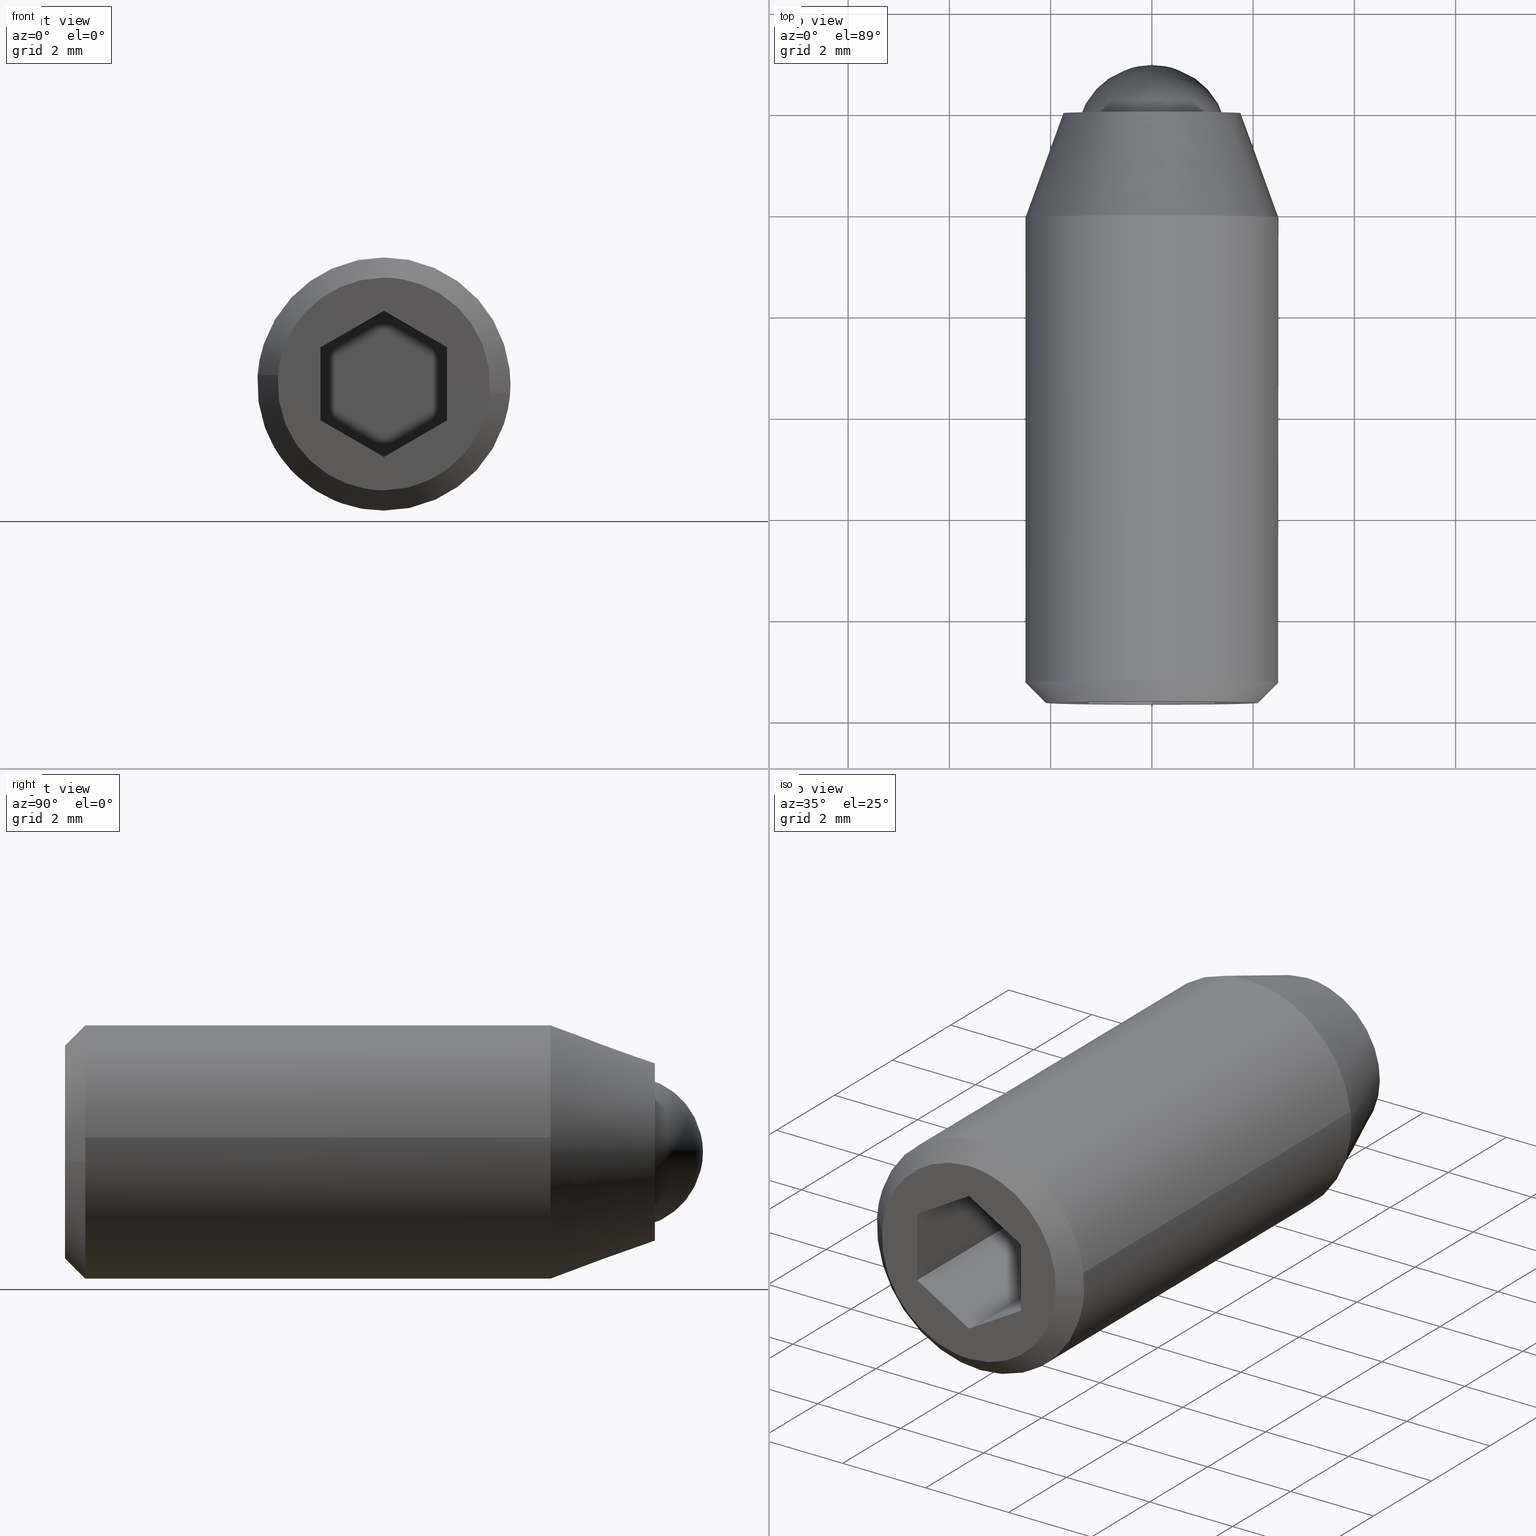
[diagram: canonical four-view strip — front | top / right | iso, engineering-drawing reading convention]
A machine part, canonical four-view strip (front | top / right | iso — engineering-drawing reading convention). The complete STEP part file that produces these views, byte-faithful:
ISO-10303-21;
HEADER;
/****************************************************************
 * Generated by software with PDE/Lib inside                    *
 * PDElib Version 4.4.1-0003, patched  Thursday August 19 11:58 *
 * International Technegroup Inc. (www.iti-oh.com)              *
 ****************************************************************/
FILE_DESCRIPTION((''),'2;1');
FILE_NAME('','2005-07-15T11:40:10',(''),(''),'','CADfix','');
FILE_SCHEMA(('AUTOMOTIVE_DESIGN'));
ENDSEC;
DATA;
#5=APPLICATION_CONTEXT('automotive design');
#6=APPLICATION_PROTOCOL_DEFINITION('Draft International Standard','automotive_design',1998,#5);
#7=PRODUCT_CONTEXT('None',#5,'mechanical');
#8=PRODUCT('body','','None',(#7));
#9=PRODUCT_RELATED_PRODUCT_CATEGORY('part','description',(#8));
#10=PRODUCT_DEFINITION_FORMATION('None','None',#8);
#11=PRODUCT_DEFINITION_CONTEXT('part definition',#5,'design');
#12=PRODUCT_DEFINITION('None','None',#10,#11);
#18=(NAMED_UNIT(*)PLANE_ANGLE_UNIT()SI_UNIT($,.RADIAN.));
#19=DIMENSIONAL_EXPONENTS(0.0,0.0,0.0,0.0,0.0,0.0,0.0);
#20=PLANE_ANGLE_MEASURE_WITH_UNIT(PLANE_ANGLE_MEASURE(0.017453292500000),#18);
#24=(CONVERSION_BASED_UNIT('DEGREE',#20)NAMED_UNIT(#19)PLANE_ANGLE_UNIT());
#28=(NAMED_UNIT(*)SI_UNIT($,.STERADIAN.)SOLID_ANGLE_UNIT());
#32=(LENGTH_UNIT()NAMED_UNIT(*)SI_UNIT(.MILLI.,.METRE.));
#34=UNCERTAINTY_MEASURE_WITH_UNIT(LENGTH_MEASURE(0.001000000000000),#32,'DISTANCE_ACCURACY_VALUE','');
#36=(GEOMETRIC_REPRESENTATION_CONTEXT(3)GLOBAL_UNCERTAINTY_ASSIGNED_CONTEXT((#34))GLOBAL_UNIT_ASSIGNED_CONTEXT((#24,#28,#32))REPRESENTATION_CONTEXT('None','None'));
#37=AXIS2_PLACEMENT_3D('',#38,#39,#40);
#38=CARTESIAN_POINT('',(0.0,0.0,0.0));
#39=DIRECTION('',(0.0,0.0,1.0));
#40=DIRECTION('',(1.0,0.0,0.0));
#41=ADVANCED_BREP_SHAPE_REPRESENTATION('',(#37,#949,#1160),#36);
#42=PRODUCT_DEFINITION_SHAPE('','',#12);
#43=SHAPE_DEFINITION_REPRESENTATION(#42,#41);
#44=CARTESIAN_POINT('',(-1.489514289545500,0.075000000000000,0.177051351985138));
#45=CARTESIAN_POINT('',(-1.494581423172908,0.075000000000000,0.134422092956966));
#46=CARTESIAN_POINT('',(-1.497202197632800,0.075000000000000,0.091572809302285));
#47=CARTESIAN_POINT('',(-1.588775006935085,0.075000000000000,-1.405629388330515));
#48=CARTESIAN_POINT('',(-0.091572809302285,0.075000000000000,-1.497202197632800));
#49=CARTESIAN_POINT('',(1.405629388330515,0.075000000000000,-1.588775006935085));
#50=CARTESIAN_POINT('',(1.497202197632800,0.075000000000000,-0.091572809302285));
#51=CARTESIAN_POINT('',(-1.489514289545500,-3.076875000000002,0.177051351985138));
#52=CARTESIAN_POINT('',(-1.494581423172908,-3.076875000000001,0.134422092956966));
#53=CARTESIAN_POINT('',(-1.497202197632800,-3.076875000000001,0.091572809302285));
#54=CARTESIAN_POINT('',(-1.588775006935085,-3.076875000000000,-1.405629388330515));
#55=CARTESIAN_POINT('',(-0.091572809302285,-3.076875000000001,-1.497202197632800));
#56=CARTESIAN_POINT('',(1.405629388330515,-3.076875000000000,-1.588775006935085));
#57=CARTESIAN_POINT('',(1.497202197632800,-3.076875000000001,-0.091572809302285));
#65=(BOUNDED_SURFACE()B_SPLINE_SURFACE(2,1,((#44,#51),(#45,#52),(#46,#53),(#47,#54),(#48,#55),(#49,#56),(#50,#57)),.UNSPECIFIED.,.F.,.F.,.U.)B_SPLINE_SURFACE_WITH_KNOTS((3,2,2,3),(2,2),(3.078760800517997,3.141592653589793,4.712388980384690,6.283185307179586),(0.0,3.151875000000001),.UNSPECIFIED.)GEOMETRIC_REPRESENTATION_ITEM()RATIONAL_B_SPLINE_SURFACE(((0.977505800795127,0.977505800795127),(0.988284271247462,0.988284271247462),(1.0,1.0),(0.707106781186548,0.707106781186548),(1.0,1.0),(0.707106781186548,0.707106781186548),(1.0,1.0)))REPRESENTATION_ITEM('')SURFACE());
#66=CARTESIAN_POINT('',(-1.489514289544851,-3.0,0.177051351990592));
#67=VERTEX_POINT('',#66);
#68=CARTESIAN_POINT('',(0.0,-3.0,-1.500000000000000));
#69=VERTEX_POINT('',#68);
#70=CARTESIAN_POINT('',(-1.489514289544851,-3.0,0.177051351990592));
#71=CARTESIAN_POINT('',(-1.500000000000000,-3.000000000000000,0.088836179483378));
#72=CARTESIAN_POINT('',(-1.500000000000000,-3.0,0.0));
#73=CARTESIAN_POINT('',(-1.500000000000000,-3.0,-1.500000000000000));
#74=CARTESIAN_POINT('',(0.0,-3.0,-1.500000000000000));
#82=(BOUNDED_CURVE()B_SPLINE_CURVE(2,(#70,#71,#72,#73,#74),.UNSPECIFIED.,.F.,.U.)B_SPLINE_CURVE_WITH_KNOTS((3,2,3),(0.229562473514406,0.250000000000000,0.500000000000000),.UNSPECIFIED.)CURVE()GEOMETRIC_REPRESENTATION_ITEM()RATIONAL_B_SPLINE_CURVE((0.956026754185460,0.976055948332197,1.0,0.707106781186548,1.0))REPRESENTATION_ITEM(''));
#83=EDGE_CURVE('',#67,#69,#82,.T.);
#84=ORIENTED_EDGE('',*,*,#83,.T.);
#85=CARTESIAN_POINT('',(1.497202308382899,-3.000000000000011,-0.091570998518247));
#86=VERTEX_POINT('',#85);
#87=CARTESIAN_POINT('',(0.0,-3.0,-1.500000000000000));
#88=CARTESIAN_POINT('',(1.411060810147168,-3.000000000000000,-1.500000000000001));
#89=CARTESIAN_POINT('',(1.497202308382898,-3.000000000000010,-0.091570998518247));
#97=(BOUNDED_CURVE()B_SPLINE_CURVE(2,(#87,#88,#89),.UNSPECIFIED.,.F.,.U.)B_SPLINE_CURVE_WITH_KNOTS((3,3),(0.500000000000000,0.739333170927891),.UNSPECIFIED.)CURVE()GEOMETRIC_REPRESENTATION_ITEM()RATIONAL_B_SPLINE_CURVE((1.0,0.719603748792400,0.976072488927266))REPRESENTATION_ITEM(''));
#98=EDGE_CURVE('',#69,#86,#97,.T.);
#99=ORIENTED_EDGE('',*,*,#98,.T.);
#100=CARTESIAN_POINT('',(1.497202307014472,-6.938894E-017,-0.091571020892705));
#101=VERTEX_POINT('',#100);
#102=CARTESIAN_POINT('',(1.497202307014472,-6.938894E-017,-0.091571020892705));
#103=CARTESIAN_POINT('',(1.497202308382899,-3.000000000000011,-0.091570998518247));
#104=QUASI_UNIFORM_CURVE('',1,(#102,#103),.UNSPECIFIED.,.F.,.U.);
#105=EDGE_CURVE('',#101,#86,#104,.T.);
#106=ORIENTED_EDGE('',*,*,#105,.F.);
#107=CARTESIAN_POINT('',(0.0,0.0,-1.500000000000000));
#108=VERTEX_POINT('',#107);
#109=CARTESIAN_POINT('',(0.0,0.0,-1.500000000000000));
#110=CARTESIAN_POINT('',(1.411060789020624,0.0,-1.500000000000000));
#111=CARTESIAN_POINT('',(1.497202307014472,-6.938894E-017,-0.091571020892705));
#119=(BOUNDED_CURVE()B_SPLINE_CURVE(2,(#109,#110,#111),.UNSPECIFIED.,.F.,.U.)B_SPLINE_CURVE_WITH_KNOTS((3,3),(0.500000000000000,0.739333168349320),.UNSPECIFIED.)CURVE()GEOMETRIC_REPRESENTATION_ITEM()RATIONAL_B_SPLINE_CURVE((1.0,0.719603751813383,0.976072483400888))REPRESENTATION_ITEM(''));
#120=EDGE_CURVE('',#108,#101,#119,.T.);
#121=ORIENTED_EDGE('',*,*,#120,.F.);
#122=CARTESIAN_POINT('',(-1.489514617759569,-6.388714E-017,0.177048590711231));
#123=VERTEX_POINT('',#122);
#124=CARTESIAN_POINT('',(-1.489514617759569,-6.388714E-017,0.177048590711231));
#125=CARTESIAN_POINT('',(-1.500000000000000,0.0,0.088834784245378));
#126=CARTESIAN_POINT('',(-1.500000000000000,0.0,0.0));
#127=CARTESIAN_POINT('',(-1.500000000000000,0.0,-1.500000000000000));
#128=CARTESIAN_POINT('',(0.0,0.0,-1.500000000000000));
#136=(BOUNDED_CURVE()B_SPLINE_CURVE(2,(#124,#125,#126,#127,#128),.UNSPECIFIED.,.F.,.U.)B_SPLINE_CURVE_WITH_KNOTS((3,2,3),(0.229562786815299,0.250000000000000,0.500000000000000),.UNSPECIFIED.)CURVE()GEOMETRIC_REPRESENTATION_ITEM()RATIONAL_B_SPLINE_CURVE((0.956027368268950,0.976056315387024,1.0,0.707106781186548,1.0))REPRESENTATION_ITEM(''));
#137=EDGE_CURVE('',#123,#108,#136,.T.);
#138=ORIENTED_EDGE('',*,*,#137,.F.);
#139=CARTESIAN_POINT('',(-1.489514617759569,-6.388714E-017,0.177048590711231));
#140=CARTESIAN_POINT('',(-1.489514289544851,-3.0,0.177051351990592));
#141=QUASI_UNIFORM_CURVE('',1,(#139,#140),.UNSPECIFIED.,.F.,.U.);
#142=EDGE_CURVE('',#123,#67,#141,.T.);
#143=ORIENTED_EDGE('',*,*,#142,.T.);
#144=EDGE_LOOP('',(#84,#99,#106,#121,#138,#143));
#145=FACE_OUTER_BOUND('',#144,.T.);
#146=ADVANCED_FACE('',(#145),#65,.F.);
#147=CARTESIAN_POINT('',(1.495940415275414,0.075000000000000,-0.112202768487840));
#148=CARTESIAN_POINT('',(1.496569500911189,0.075000000000000,-0.101917309260817));
#149=CARTESIAN_POINT('',(1.588775006935085,0.075000000000000,1.405629388330515));
#150=CARTESIAN_POINT('',(0.091572809302285,0.075000000000000,1.497202197632800));
#151=CARTESIAN_POINT('',(-1.322315236259252,0.075000000000000,1.583679295098791));
#152=CARTESIAN_POINT('',(-1.490766207980386,0.075000000000000,0.166519094664310));
#153=CARTESIAN_POINT('',(-1.492011397790690,0.075000000000000,0.156043444550095));
#154=CARTESIAN_POINT('',(1.495940415275414,-3.076875000000002,-0.112202768487840));
#155=CARTESIAN_POINT('',(1.496569500911189,-3.076874999999999,-0.101917309260817));
#156=CARTESIAN_POINT('',(1.588775006935085,-3.076875000000000,1.405629388330515));
#157=CARTESIAN_POINT('',(0.091572809302285,-3.076875000000001,1.497202197632800));
#158=CARTESIAN_POINT('',(-1.322315236259252,-3.076875000000001,1.583679295098791));
#159=CARTESIAN_POINT('',(-1.490766207980386,-3.076875000000001,0.166519094664310));
#160=CARTESIAN_POINT('',(-1.492011397790690,-3.076875000000001,0.156043444550095));
#168=(BOUNDED_SURFACE()B_SPLINE_SURFACE(2,1,((#147,#154),(#148,#155),(#149,#156),(#150,#157),(#151,#158),(#152,#159),(#153,#160)),.UNSPECIFIED.,.F.,.F.,.U.)B_SPLINE_SURFACE_WITH_KNOTS((3,1,2,1,3),(2,2),(0.0,0.024353663183081,2.509635037421651,4.895505156690678,4.919864103565440),(0.0,3.151875000000001),.UNSPECIFIED.)GEOMETRIC_REPRESENTATION_ITEM()RATIONAL_B_SPLINE_SURFACE(((1.005740213461163,1.005740213461163),(1.002870106730582,1.002870106730582),(0.707106781186548,0.707106781186548),(1.0,1.0),(0.718822509939086,0.718822509939086),(0.980146871861175,0.980146871861175),(0.982787942927224,0.982787942927224)))REPRESENTATION_ITEM('')SURFACE());
#169=CARTESIAN_POINT('',(0.0,-3.0,1.500000000000000));
#170=VERTEX_POINT('',#169);
#171=CARTESIAN_POINT('',(0.0,-3.0,1.500000000000000));
#172=CARTESIAN_POINT('',(-1.332261788917225,-3.000000000000000,1.500000000000001));
#173=CARTESIAN_POINT('',(-1.489514289544851,-3.0,0.177051351990592));
#181=(BOUNDED_CURVE()B_SPLINE_CURVE(2,(#171,#172,#173),.UNSPECIFIED.,.F.,.U.)B_SPLINE_CURVE_WITH_KNOTS((3,3),(0.0,0.229562473514406),.UNSPECIFIED.)CURVE()GEOMETRIC_REPRESENTATION_ITEM()RATIONAL_B_SPLINE_CURVE((1.0,0.731050832854350,0.956026754185460))REPRESENTATION_ITEM(''));
#182=EDGE_CURVE('',#170,#67,#181,.T.);
#183=ORIENTED_EDGE('',*,*,#182,.T.);
#184=ORIENTED_EDGE('',*,*,#142,.F.);
#185=CARTESIAN_POINT('',(0.0,0.0,1.500000000000000));
#186=VERTEX_POINT('',#185);
#187=CARTESIAN_POINT('',(0.0,0.0,1.500000000000000));
#188=CARTESIAN_POINT('',(-1.332264276072788,0.0,1.500000000000000));
#189=CARTESIAN_POINT('',(-1.489514617759569,-6.388714E-017,0.177048590711231));
#197=(BOUNDED_CURVE()B_SPLINE_CURVE(2,(#187,#188,#189),.UNSPECIFIED.,.F.,.U.)B_SPLINE_CURVE_WITH_KNOTS((3,3),(0.0,0.229562786815299),.UNSPECIFIED.)CURVE()GEOMETRIC_REPRESENTATION_ITEM()RATIONAL_B_SPLINE_CURVE((1.0,0.731050465799523,0.956027368268950))REPRESENTATION_ITEM(''));
#198=EDGE_CURVE('',#186,#123,#197,.T.);
#199=ORIENTED_EDGE('',*,*,#198,.F.);
#200=CARTESIAN_POINT('',(1.497202307014472,-6.938894E-017,-0.091571020892705));
#201=CARTESIAN_POINT('',(1.500000000000000,0.0,-0.045828248235911));
#202=CARTESIAN_POINT('',(1.500000000000000,0.0,0.0));
#203=CARTESIAN_POINT('',(1.500000000000000,0.0,1.500000000000000));
#204=CARTESIAN_POINT('',(0.0,0.0,1.500000000000000));
#212=(BOUNDED_CURVE()B_SPLINE_CURVE(2,(#200,#201,#202,#203,#204),.UNSPECIFIED.,.F.,.U.)B_SPLINE_CURVE_WITH_KNOTS((3,2,3),(0.739333168349320,0.750000000000000,1.0),.UNSPECIFIED.)CURVE()GEOMETRIC_REPRESENTATION_ITEM()RATIONAL_B_SPLINE_CURVE((0.976072483400888,0.987503029373164,1.0,0.707106781186548,1.0))REPRESENTATION_ITEM(''));
#213=EDGE_CURVE('',#101,#186,#212,.T.);
#214=ORIENTED_EDGE('',*,*,#213,.F.);
#215=ORIENTED_EDGE('',*,*,#105,.T.);
#216=CARTESIAN_POINT('',(1.497202308382898,-3.000000000000010,-0.091570998518247));
#217=CARTESIAN_POINT('',(1.500000000000000,-3.000000000000000,-0.045828237017317));
#218=CARTESIAN_POINT('',(1.500000000000000,-3.0,0.0));
#219=CARTESIAN_POINT('',(1.500000000000000,-3.0,1.500000000000000));
#220=CARTESIAN_POINT('',(0.0,-3.0,1.500000000000000));
#228=(BOUNDED_CURVE()B_SPLINE_CURVE(2,(#216,#217,#218,#219,#220),.UNSPECIFIED.,.F.,.U.)B_SPLINE_CURVE_WITH_KNOTS((3,2,3),(0.739333170927891,0.750000000000000,1.0),.UNSPECIFIED.)CURVE()GEOMETRIC_REPRESENTATION_ITEM()RATIONAL_B_SPLINE_CURVE((0.976072488927266,0.987503032394148,1.0,0.707106781186548,1.0))REPRESENTATION_ITEM(''));
#229=EDGE_CURVE('',#86,#170,#228,.T.);
#230=ORIENTED_EDGE('',*,*,#229,.T.);
#231=EDGE_LOOP('',(#183,#184,#199,#214,#215,#230));
#232=FACE_OUTER_BOUND('',#231,.T.);
#233=ADVANCED_FACE('',(#232),#168,.F.);
#234=CARTESIAN_POINT('',(-1.403997998205588,0.051515200000000,-1.012924569518730));
#235=CARTESIAN_POINT('',(-0.924204506662681,0.051515200000000,-1.677958395283637));
#236=CARTESIAN_POINT('',(-0.105690284069721,0.051515200000000,-1.728020869767858));
#237=CARTESIAN_POINT('',(1.622330585698137,0.051515200000000,-1.833711153837579));
#238=CARTESIAN_POINT('',(1.728020869767858,0.051515200000000,-0.105690284069722));
#239=CARTESIAN_POINT('',(1.833711153837579,0.051515200000000,1.622330585698135));
#240=CARTESIAN_POINT('',(0.105690284069721,0.051515200000000,1.728020869767857));
#241=CARTESIAN_POINT('',(-1.622330585698137,0.051515200000000,1.833711153837578));
#242=CARTESIAN_POINT('',(-1.728020869767858,0.051515200000000,0.105690284069721));
#243=CARTESIAN_POINT('',(-2.043019830782372,-2.113411079999999,-1.473951519345710));
#244=CARTESIAN_POINT('',(-1.344851016328736,-2.113411080000000,-2.441671769599102));
#245=CARTESIAN_POINT('',(-0.153794625456328,-2.113411080000000,-2.514519899211838));
#246=CARTESIAN_POINT('',(2.360725273755510,-2.113411080000000,-2.668314524668165));
#247=CARTESIAN_POINT('',(2.514519899211837,-2.113411080000000,-0.153794625456329));
#248=CARTESIAN_POINT('',(2.668314524668165,-2.113411080000000,2.360725273755509));
#249=CARTESIAN_POINT('',(0.153794625456328,-2.113411080000000,2.514519899211837));
#250=CARTESIAN_POINT('',(-2.360725273755510,-2.113411080000000,2.668314524668165));
#251=CARTESIAN_POINT('',(-2.514519899211837,-2.113411080000000,0.153794625456327));
#259=(BOUNDED_SURFACE()B_SPLINE_SURFACE(2,1,((#234,#243),(#235,#244),(#236,#245),(#237,#246),(#238,#247),(#239,#248),(#240,#249),(#241,#250),(#242,#251)),.UNSPECIFIED.,.F.,.F.,.U.)B_SPLINE_SURFACE_WITH_KNOTS((3,2,2,2,3),(2,2),(0.0,2.337427843149494,6.511406134487875,10.685384425826260,14.859362717164640),(0.0,2.303866434672635),.UNSPECIFIED.)GEOMETRIC_REPRESENTATION_ITEM()RATIONAL_B_SPLINE_SURFACE(((0.855662221768731,0.855662221768731),(0.835979797464467,0.835979797464467),(1.0,1.0),(0.707106781186548,0.707106781186548),(1.0,1.0),(0.707106781186548,0.707106781186548),(1.0,1.0),(0.707106781186548,0.707106781186548),(1.0,1.0)))REPRESENTATION_ITEM('')SURFACE());
#260=CARTESIAN_POINT('',(-1.419203550884035,0.000001346621593,-1.023894313736825));
#261=VERTEX_POINT('',#260);
#262=CARTESIAN_POINT('',(0.0,0.0,-1.750000000000000));
#263=VERTEX_POINT('',#262);
#264=CARTESIAN_POINT('',(-1.419203550884035,0.000001346621593,-1.023894313736825));
#265=CARTESIAN_POINT('',(-0.895349937918876,0.000000673310797,-1.749999856616697));
#266=CARTESIAN_POINT('',(0.0,0.0,-1.750000000000000));
#274=(BOUNDED_CURVE()B_SPLINE_CURVE(2,(#264,#265,#266),.UNSPECIFIED.,.F.,.U.)B_SPLINE_CURVE_WITH_KNOTS((3,3),(0.850743021360677,1.0),.UNSPECIFIED.)CURVE()GEOMETRIC_REPRESENTATION_ITEM()RATIONAL_B_SPLINE_CURVE((0.859068227923364,0.825134572383831,1.0))REPRESENTATION_ITEM(''));
#275=EDGE_CURVE('',#261,#263,#274,.T.);
#276=ORIENTED_EDGE('',*,*,#275,.T.);
#277=CARTESIAN_POINT('',(0.0,0.0,1.750000000000000));
#278=VERTEX_POINT('',#277);
#279=CARTESIAN_POINT('',(0.0,0.0,-1.750000000000000));
#280=CARTESIAN_POINT('',(1.750000000000000,0.0,-1.750000000000000));
#281=CARTESIAN_POINT('',(1.750000000000000,0.0,-5.143347E-016));
#282=CARTESIAN_POINT('',(1.750000000000000,0.0,1.750000000000000));
#283=CARTESIAN_POINT('',(0.0,0.0,1.750000000000000));
#291=(BOUNDED_CURVE()B_SPLINE_CURVE(2,(#279,#280,#281,#282,#283),.UNSPECIFIED.,.F.,.U.)B_SPLINE_CURVE_WITH_KNOTS((3,2,3),(0.0,0.250000000000000,0.500000000000000),.UNSPECIFIED.)CURVE()GEOMETRIC_REPRESENTATION_ITEM()RATIONAL_B_SPLINE_CURVE((1.0,0.707106781186547,1.0,0.707106781186547,1.0))REPRESENTATION_ITEM(''));
#292=EDGE_CURVE('',#263,#278,#291,.T.);
#293=ORIENTED_EDGE('',*,*,#292,.T.);
#294=CARTESIAN_POINT('',(-1.746735897238338,-2.364785E-012,0.106834944198939));
#295=VERTEX_POINT('',#294);
#296=CARTESIAN_POINT('',(0.0,0.0,1.750000000000000));
#297=CARTESIAN_POINT('',(-1.646235617060632,0.0,1.750000000000000));
#298=CARTESIAN_POINT('',(-1.746735897238338,-2.364785E-012,0.106834944198939));
#306=(BOUNDED_CURVE()B_SPLINE_CURVE(2,(#296,#297,#298),.UNSPECIFIED.,.F.,.U.)B_SPLINE_CURVE_WITH_KNOTS((3,3),(0.500000000000000,0.739332962239422),.UNSPECIFIED.)CURVE()GEOMETRIC_REPRESENTATION_ITEM()RATIONAL_B_SPLINE_CURVE((1.0,0.719603993286148,0.976072041667746))REPRESENTATION_ITEM(''));
#307=EDGE_CURVE('',#278,#295,#306,.T.);
#308=ORIENTED_EDGE('',*,*,#307,.T.);
#309=CARTESIAN_POINT('',(-2.495337114130603,-2.060607997454079,0.152619403109031));
#310=VERTEX_POINT('',#309);
#311=CARTESIAN_POINT('',(-1.746735897238338,-2.364785E-012,0.106834944198939));
#312=CARTESIAN_POINT('',(-2.495337114130603,-2.060607997454079,0.152619403109031));
#313=QUASI_UNIFORM_CURVE('',1,(#311,#312),.UNSPECIFIED.,.F.,.U.);
#314=EDGE_CURVE('',#295,#310,#313,.T.);
#315=ORIENTED_EDGE('',*,*,#314,.T.);
#316=CARTESIAN_POINT('',(0.0,-2.060608000000000,2.500000000000000));
#317=VERTEX_POINT('',#316);
#318=CARTESIAN_POINT('',(0.0,-2.060608000000000,2.500000000000000));
#319=CARTESIAN_POINT('',(-2.351767004416773,-2.060607999999999,2.500000000000000));
#320=CARTESIAN_POINT('',(-2.495337114130602,-2.060607997454079,0.152619403109031));
#328=(BOUNDED_CURVE()B_SPLINE_CURVE(2,(#318,#319,#320),.UNSPECIFIED.,.F.,.U.)B_SPLINE_CURVE_WITH_KNOTS((3,3),(0.500000000000000,0.739333096780675),.UNSPECIFIED.)CURVE()GEOMETRIC_REPRESENTATION_ITEM()RATIONAL_B_SPLINE_CURVE((1.0,0.719603835661266,0.976072330015430))REPRESENTATION_ITEM(''));
#329=EDGE_CURVE('',#317,#310,#328,.T.);
#330=ORIENTED_EDGE('',*,*,#329,.F.);
#331=CARTESIAN_POINT('',(2.483673312039143,-2.060608000000000,0.285248802024170));
#332=VERTEX_POINT('',#331);
#333=CARTESIAN_POINT('',(2.483673312039144,-2.060608000000000,0.285248802024170));
#334=CARTESIAN_POINT('',(2.229310098110104,-2.060608000000001,2.500000000000000));
#335=CARTESIAN_POINT('',(0.0,-2.060608000000000,2.500000000000000));
#343=(BOUNDED_CURVE()B_SPLINE_CURVE(2,(#333,#334,#335),.UNSPECIFIED.,.F.,.U.)B_SPLINE_CURVE_WITH_KNOTS((3,3),(0.269767561009632,0.500000000000000),.UNSPECIFIED.)CURVE()GEOMETRIC_REPRESENTATION_ITEM()RATIONAL_B_SPLINE_CURVE((0.957344120854817,0.730265919475357,1.0))REPRESENTATION_ITEM(''));
#344=EDGE_CURVE('',#332,#317,#343,.T.);
#345=ORIENTED_EDGE('',*,*,#344,.F.);
#346=CARTESIAN_POINT('',(0.0,-2.060608000000000,-2.500000000000000));
#347=VERTEX_POINT('',#346);
#348=CARTESIAN_POINT('',(0.0,-2.060608000000000,-2.500000000000000));
#349=CARTESIAN_POINT('',(2.500000000000000,-2.060607999999999,-2.500000000000000));
#350=CARTESIAN_POINT('',(2.500000000000000,-2.060608000000000,-5.143347E-016));
#351=CARTESIAN_POINT('',(2.500000000000000,-2.060608000000000,0.143091643534892));
#352=CARTESIAN_POINT('',(2.483673312039144,-2.060608000000000,0.285248802024170));
#360=(BOUNDED_CURVE()B_SPLINE_CURVE(2,(#348,#349,#350,#351,#352),.UNSPECIFIED.,.F.,.U.)B_SPLINE_CURVE_WITH_KNOTS((3,2,3),(0.0,0.250000000000000,0.269767561009632),.UNSPECIFIED.)CURVE()GEOMETRIC_REPRESENTATION_ITEM()RATIONAL_B_SPLINE_CURVE((1.0,0.707106781186548,1.0,0.976840861711190,0.957344120854817))REPRESENTATION_ITEM(''));
#361=EDGE_CURVE('',#347,#332,#360,.T.);
#362=ORIENTED_EDGE('',*,*,#361,.F.);
#363=CARTESIAN_POINT('',(-2.027433932426558,-2.060608000000052,-1.462706959594258));
#364=VERTEX_POINT('',#363);
#365=CARTESIAN_POINT('',(-2.027433932426558,-2.060608000000051,-1.462706959594258));
#366=CARTESIAN_POINT('',(-1.279071322393233,-2.060608000000000,-2.500000000000000));
#367=CARTESIAN_POINT('',(0.0,-2.060608000000000,-2.500000000000000));
#375=(BOUNDED_CURVE()B_SPLINE_CURVE(2,(#365,#366,#367),.UNSPECIFIED.,.F.,.U.)B_SPLINE_CURVE_WITH_KNOTS((3,3),(0.850743050382060,1.0),.UNSPECIFIED.)CURVE()GEOMETRIC_REPRESENTATION_ITEM()RATIONAL_B_SPLINE_CURVE((0.859068214727317,0.825134606384498,1.0))REPRESENTATION_ITEM(''));
#376=EDGE_CURVE('',#364,#347,#375,.T.);
#377=ORIENTED_EDGE('',*,*,#376,.F.);
#378=CARTESIAN_POINT('',(-1.419203550884035,0.000001346621593,-1.023894313736825));
#379=CARTESIAN_POINT('',(-2.027433932426558,-2.060608000000052,-1.462706959594258));
#380=QUASI_UNIFORM_CURVE('',1,(#378,#379),.UNSPECIFIED.,.F.,.U.);
#381=EDGE_CURVE('',#261,#364,#380,.T.);
#382=ORIENTED_EDGE('',*,*,#381,.F.);
#383=EDGE_LOOP('',(#276,#293,#308,#315,#330,#345,#362,#377,#382));
#384=FACE_OUTER_BOUND('',#383,.T.);
#385=ADVANCED_FACE('',(#384),#259,.T.);
#386=CARTESIAN_POINT('',(-1.728020869767858,0.051515200000000,0.105690284069721));
#387=CARTESIAN_POINT('',(-1.765768637780785,0.051515200000000,-0.511480267486979));
#388=CARTESIAN_POINT('',(-1.403997998205588,0.051515200000000,-1.012924569518730));
#389=CARTESIAN_POINT('',(-2.514519899211837,-2.113411080000000,0.153794625456327));
#390=CARTESIAN_POINT('',(-2.569448352611875,-2.113411080000001,-0.744277649159977));
#391=CARTESIAN_POINT('',(-2.043019830782372,-2.113411079999999,-1.473951519345710));
#399=(BOUNDED_SURFACE()B_SPLINE_SURFACE(2,1,((#386,#389),(#387,#390),(#388,#391)),.UNSPECIFIED.,.F.,.F.,.U.)B_SPLINE_SURFACE_WITH_KNOTS((3,3),(2,2),(0.0,1.832024158793483),(0.0,2.303866434672635),.UNSPECIFIED.)GEOMETRIC_REPRESENTATION_ITEM()RATIONAL_B_SPLINE_SURFACE(((1.0,1.0),(0.871126983722081,0.871126983722081),(0.855662221768731,0.855662221768731)))REPRESENTATION_ITEM('')SURFACE());
#400=CARTESIAN_POINT('',(-1.746735897238339,-2.364785E-012,0.106834944198939));
#401=CARTESIAN_POINT('',(-1.749999983000254,0.000000057596080,0.053467348038886));
#402=CARTESIAN_POINT('',(-1.749999965659877,0.000000116342954,0.000000024764272));
#403=CARTESIAN_POINT('',(-1.749999782296288,0.000000737554236,-0.565383320961044));
#404=CARTESIAN_POINT('',(-1.419203550884035,0.000001346621593,-1.023894313736825));
#412=(BOUNDED_CURVE()B_SPLINE_CURVE(2,(#400,#401,#402,#403,#404),.UNSPECIFIED.,.F.,.U.)B_SPLINE_CURVE_WITH_KNOTS((3,2,3),(0.739332962239422,0.750000000000000,0.850743021360677),.UNSPECIFIED.)CURVE()GEOMETRIC_REPRESENTATION_ITEM()RATIONAL_B_SPLINE_CURVE((0.976072041667745,0.987502787900399,1.0,0.881972208802716,0.859068227923364))REPRESENTATION_ITEM(''));
#413=EDGE_CURVE('',#295,#261,#412,.T.);
#414=ORIENTED_EDGE('',*,*,#413,.T.);
#415=ORIENTED_EDGE('',*,*,#381,.T.);
#416=CARTESIAN_POINT('',(-2.495337114130602,-2.060607997454079,0.152619403109031));
#417=CARTESIAN_POINT('',(-2.500000000000000,-2.060608000000000,0.076380932683022));
#418=CARTESIAN_POINT('',(-2.500000000000000,-2.060608000000000,-5.143347E-016));
#419=CARTESIAN_POINT('',(-2.500000000000001,-2.060608000000000,-0.807690946696382));
#420=CARTESIAN_POINT('',(-2.027433932426558,-2.060608000000052,-1.462706959594259));
#428=(BOUNDED_CURVE()B_SPLINE_CURVE(2,(#416,#417,#418,#419,#420),.UNSPECIFIED.,.F.,.U.)B_SPLINE_CURVE_WITH_KNOTS((3,2,3),(0.739333096780675,0.750000000000000,0.850743050382061),.UNSPECIFIED.)CURVE()GEOMETRIC_REPRESENTATION_ITEM()RATIONAL_B_SPLINE_CURVE((0.976072330015430,0.987502945525281,1.0,0.881972174802049,0.859068214727317))REPRESENTATION_ITEM(''));
#429=EDGE_CURVE('',#310,#364,#428,.T.);
#430=ORIENTED_EDGE('',*,*,#429,.F.);
#431=ORIENTED_EDGE('',*,*,#314,.F.);
#432=EDGE_LOOP('',(#414,#415,#430,#431));
#433=FACE_OUTER_BOUND('',#432,.T.);
#434=ADVANCED_FACE('',(#433),#399,.T.);
#435=CARTESIAN_POINT('',(2.483672983589284,-1.830873199999999,0.285251661850900));
#436=CARTESIAN_POINT('',(2.244537881465204,-1.830873199999999,2.367389899783016));
#437=CARTESIAN_POINT('',(0.152621348837143,-1.830873199999999,2.495336996054666));
#438=CARTESIAN_POINT('',(-2.342715647217524,-1.830873200000000,2.647958344891809));
#439=CARTESIAN_POINT('',(-2.495336996054667,-1.830873199999999,0.152621348837142));
#440=CARTESIAN_POINT('',(2.483672983589284,-11.485478170000007,0.285251661850900));
#441=CARTESIAN_POINT('',(2.244537881465204,-11.485478170000000,2.367389899783016));
#442=CARTESIAN_POINT('',(0.152621348837143,-11.485478170000000,2.495336996054666));
#443=CARTESIAN_POINT('',(-2.342715647217524,-11.485478170000002,2.647958344891809));
#444=CARTESIAN_POINT('',(-2.495336996054667,-11.485478170000000,0.152621348837142));
#452=(BOUNDED_SURFACE()B_SPLINE_SURFACE(2,1,((#435,#440),(#436,#441),(#437,#442),(#438,#443),(#439,#444)),.UNSPECIFIED.,.F.,.F.,.U.)B_SPLINE_SURFACE_WITH_KNOTS((3,2,3),(2,2),(0.0,3.645079348883235,7.787214972614184),(0.0,9.654604970000005),.UNSPECIFIED.)GEOMETRIC_REPRESENTATION_ITEM()RATIONAL_B_SPLINE_SURFACE(((0.938140952186599,0.938140952186599),(0.742253967444162,0.742253967444162),(1.0,1.0),(0.707106781186548,0.707106781186548),(1.0,1.0)))REPRESENTATION_ITEM('')SURFACE());
#453=CARTESIAN_POINT('',(2.483672983588568,-11.250000000000000,0.285251661857136));
#454=VERTEX_POINT('',#453);
#455=CARTESIAN_POINT('',(0.0,-11.250000000000000,2.500000000000000));
#456=VERTEX_POINT('',#455);
#457=CARTESIAN_POINT('',(2.483672983588568,-11.249999999999998,0.285251661857136));
#458=CARTESIAN_POINT('',(2.229307514286017,-11.249999999999996,2.500000000000000));
#459=CARTESIAN_POINT('',(0.0,-11.250000000000000,2.500000000000000));
#467=(BOUNDED_CURVE()B_SPLINE_CURVE(2,(#457,#458,#459),.UNSPECIFIED.,.F.,.U.)B_SPLINE_CURVE_WITH_KNOTS((3,3),(0.269767755877459,0.500000000000000),.UNSPECIFIED.)CURVE()GEOMETRIC_REPRESENTATION_ITEM()RATIONAL_B_SPLINE_CURVE((0.957343736458988,0.730266147777218,1.0))REPRESENTATION_ITEM(''));
#468=EDGE_CURVE('',#454,#456,#467,.T.);
#469=ORIENTED_EDGE('',*,*,#468,.F.);
#470=CARTESIAN_POINT('',(2.483673312039143,-2.060608000000000,0.285248802024170));
#471=CARTESIAN_POINT('',(2.483672983588568,-11.250000000000000,0.285251661857136));
#472=QUASI_UNIFORM_CURVE('',1,(#470,#471),.UNSPECIFIED.,.F.,.U.);
#473=EDGE_CURVE('',#332,#454,#472,.T.);
#474=ORIENTED_EDGE('',*,*,#473,.F.);
#475=ORIENTED_EDGE('',*,*,#344,.T.);
#476=ORIENTED_EDGE('',*,*,#329,.T.);
#477=CARTESIAN_POINT('',(-2.495337011681478,-11.250000000000000,0.152621093340608));
#478=VERTEX_POINT('',#477);
#479=CARTESIAN_POINT('',(-2.495337114130603,-2.060607997454079,0.152619403109031));
#480=CARTESIAN_POINT('',(-2.495337011681478,-11.250000000000000,0.152621093340608));
#481=QUASI_UNIFORM_CURVE('',1,(#479,#480),.UNSPECIFIED.,.F.,.U.);
#482=EDGE_CURVE('',#310,#478,#481,.T.);
#483=ORIENTED_EDGE('',*,*,#482,.T.);
#484=CARTESIAN_POINT('',(-2.492293334333711,-11.249999999997771,0.196147739336746));
#485=VERTEX_POINT('',#484);
#486=CARTESIAN_POINT('',(-2.492293334333711,-11.249999999997769,0.196147739336746));
#487=CARTESIAN_POINT('',(-2.494005109805297,-11.250000000000005,0.174397569707751));
#488=CARTESIAN_POINT('',(-2.495337011681478,-11.249999999999996,0.152621093340608));
#496=(BOUNDED_CURVE()B_SPLINE_CURVE(2,(#486,#487,#488),.UNSPECIFIED.,.F.,.U.)B_SPLINE_CURVE_WITH_KNOTS((3,3),(0.736331300630434,0.739332997575960),.UNSPECIFIED.)CURVE()GEOMETRIC_REPRESENTATION_ITEM()RATIONAL_B_SPLINE_CURVE((0.969723356166947,0.972855512432523,0.976072117400684))REPRESENTATION_ITEM(''));
#497=EDGE_CURVE('',#485,#478,#496,.T.);
#498=ORIENTED_EDGE('',*,*,#497,.F.);
#499=CARTESIAN_POINT('',(0.0,-11.250000000000000,2.500000000000000));
#500=CARTESIAN_POINT('',(-2.310976229113979,-11.249999999999998,2.500000000000000));
#501=CARTESIAN_POINT('',(-2.492293334333711,-11.249999999997765,0.196147739336746));
#509=(BOUNDED_CURVE()B_SPLINE_CURVE(2,(#499,#500,#501),.UNSPECIFIED.,.F.,.U.)B_SPLINE_CURVE_WITH_KNOTS((3,3),(0.500000000000000,0.736331300630435),.UNSPECIFIED.)CURVE()GEOMETRIC_REPRESENTATION_ITEM()RATIONAL_B_SPLINE_CURVE((1.0,0.723120658607929,0.969723356166948))REPRESENTATION_ITEM(''));
#510=EDGE_CURVE('',#456,#485,#509,.T.);
#511=ORIENTED_EDGE('',*,*,#510,.F.);
#512=EDGE_LOOP('',(#469,#474,#475,#476,#483,#498,#511));
#513=FACE_OUTER_BOUND('',#512,.T.);
#514=ADVANCED_FACE('',(#513),#452,.T.);
#515=CARTESIAN_POINT('',(-2.495336996054667,-1.830873199999999,0.152621348837142));
#516=CARTESIAN_POINT('',(-2.647958344891809,-1.830873200000000,-2.342715647217526));
#517=CARTESIAN_POINT('',(-0.152621348837143,-1.830873199999999,-2.495336996054667));
#518=CARTESIAN_POINT('',(2.342715647217524,-1.830873200000000,-2.647958344891810));
#519=CARTESIAN_POINT('',(2.495336996054667,-1.830873199999999,-0.152621348837143));
#520=CARTESIAN_POINT('',(2.508759095986944,-1.830873199999999,0.066828045241366));
#521=CARTESIAN_POINT('',(2.483672983589284,-1.830873199999999,0.285251661850900));
#522=CARTESIAN_POINT('',(-2.495336996054667,-11.485478170000000,0.152621348837142));
#523=CARTESIAN_POINT('',(-2.647958344891809,-11.485478170000002,-2.342715647217526));
#524=CARTESIAN_POINT('',(-0.152621348837143,-11.485478170000000,-2.495336996054667));
#525=CARTESIAN_POINT('',(2.342715647217524,-11.485478170000002,-2.647958344891810));
#526=CARTESIAN_POINT('',(2.495336996054667,-11.485478170000000,-0.152621348837143));
#527=CARTESIAN_POINT('',(2.508759095986944,-11.485478170000004,0.066828045241366));
#528=CARTESIAN_POINT('',(2.483672983589284,-11.485478170000007,0.285251661850900));
#536=(BOUNDED_SURFACE()B_SPLINE_SURFACE(2,1,((#515,#522),(#516,#523),(#517,#524),(#518,#525),(#519,#526),(#520,#527),(#521,#528)),.UNSPECIFIED.,.F.,.F.,.U.)B_SPLINE_SURFACE_WITH_KNOTS((3,2,2,3),(2,2),(0.0,4.142135623730949,8.284271247461899,8.781327522309613),(0.0,9.654604970000003),.UNSPECIFIED.)GEOMETRIC_REPRESENTATION_ITEM()RATIONAL_B_SPLINE_SURFACE(((1.0,1.0),(0.707106781186548,0.707106781186548),(1.0,1.0),(0.707106781186548,0.707106781186548),(1.0,1.0),(0.964852813742386,0.964852813742386),(0.938140952186599,0.938140952186599)))REPRESENTATION_ITEM('')SURFACE());
#537=CARTESIAN_POINT('',(2.492293334333710,-11.249999999997771,-0.196147739336747));
#538=VERTEX_POINT('',#537);
#539=CARTESIAN_POINT('',(2.492293334333709,-11.249999999997767,-0.196147739336747));
#540=CARTESIAN_POINT('',(2.500000000000000,-11.250000000000002,-0.098225267536211));
#541=CARTESIAN_POINT('',(2.500000000000000,-11.250000000000000,-5.143347E-016));
#542=CARTESIAN_POINT('',(2.500000000000000,-11.249999999999996,0.143093087569527));
#543=CARTESIAN_POINT('',(2.483672983588568,-11.249999999999998,0.285251661857136));
#551=(BOUNDED_CURVE()B_SPLINE_CURVE(2,(#539,#540,#541,#542,#543),.UNSPECIFIED.,.F.,.U.)B_SPLINE_CURVE_WITH_KNOTS((3,2,3),(0.236331300630434,0.250000000000000,0.269767755877459),.UNSPECIFIED.)CURVE()GEOMETRIC_REPRESENTATION_ITEM()RATIONAL_B_SPLINE_CURVE((0.969723356166947,0.983986122578618,1.0,0.976840633409330,0.957343736458988))REPRESENTATION_ITEM(''));
#552=EDGE_CURVE('',#538,#454,#551,.T.);
#553=ORIENTED_EDGE('',*,*,#552,.F.);
#554=CARTESIAN_POINT('',(0.0,-11.250000000000000,-2.500000000000000));
#555=VERTEX_POINT('',#554);
#556=CARTESIAN_POINT('',(0.0,-11.250000000000000,-2.500000000000000));
#557=CARTESIAN_POINT('',(2.310976229113971,-11.249999999999998,-2.500000000000000));
#558=CARTESIAN_POINT('',(2.492293334333709,-11.249999999997767,-0.196147739336747));
#566=(BOUNDED_CURVE()B_SPLINE_CURVE(2,(#556,#557,#558),.UNSPECIFIED.,.F.,.U.)B_SPLINE_CURVE_WITH_KNOTS((3,3),(0.0,0.236331300630434),.UNSPECIFIED.)CURVE()GEOMETRIC_REPRESENTATION_ITEM()RATIONAL_B_SPLINE_CURVE((1.0,0.723120658607930,0.969723356166947))REPRESENTATION_ITEM(''));
#567=EDGE_CURVE('',#555,#538,#566,.T.);
#568=ORIENTED_EDGE('',*,*,#567,.F.);
#569=CARTESIAN_POINT('',(-2.495337011681478,-11.250000000000000,0.152621093340608));
#570=CARTESIAN_POINT('',(-2.500000000000000,-11.250000000000002,0.076381652033552));
#571=CARTESIAN_POINT('',(-2.500000000000000,-11.250000000000000,-5.143347E-016));
#572=CARTESIAN_POINT('',(-2.500000000000000,-11.249999999999998,-2.500000000000000));
#573=CARTESIAN_POINT('',(0.0,-11.250000000000000,-2.500000000000000));
#581=(BOUNDED_CURVE()B_SPLINE_CURVE(2,(#569,#570,#571,#572,#573),.UNSPECIFIED.,.F.,.U.)B_SPLINE_CURVE_WITH_KNOTS((3,2,3),(0.739332997575960,0.750000000000000,1.0),.UNSPECIFIED.)CURVE()GEOMETRIC_REPRESENTATION_ITEM()RATIONAL_B_SPLINE_CURVE((0.976072117400684,0.987502829299728,1.0,0.707106781186548,1.0))REPRESENTATION_ITEM(''));
#582=EDGE_CURVE('',#478,#555,#581,.T.);
#583=ORIENTED_EDGE('',*,*,#582,.F.);
#584=ORIENTED_EDGE('',*,*,#482,.F.);
#585=ORIENTED_EDGE('',*,*,#429,.T.);
#586=ORIENTED_EDGE('',*,*,#376,.T.);
#587=ORIENTED_EDGE('',*,*,#361,.T.);
#588=ORIENTED_EDGE('',*,*,#473,.T.);
#589=EDGE_LOOP('',(#553,#568,#583,#584,#585,#586,#587,#588));
#590=FACE_OUTER_BOUND('',#589,.T.);
#591=ADVANCED_FACE('',(#590),#536,.T.);
#592=CARTESIAN_POINT('',(2.083557227502235,-11.660000000000000,-0.163979510071197));
#593=CARTESIAN_POINT('',(1.919577717431037,-11.660000000000002,-2.247536737573432));
#594=CARTESIAN_POINT('',(-0.163979510071197,-11.660000000000000,-2.083557227502235));
#595=CARTESIAN_POINT('',(-2.247536737573432,-11.660000000000002,-1.919577717431039));
#596=CARTESIAN_POINT('',(-2.083557227502235,-11.660000000000000,0.163979510071196));
#597=CARTESIAN_POINT('',(2.502511737003586,-11.239750000000001,-0.196951945050825));
#598=CARTESIAN_POINT('',(2.305559791952761,-11.239749999999997,-2.699463682054411));
#599=CARTESIAN_POINT('',(-0.196951945050825,-11.239750000000001,-2.502511737003586));
#600=CARTESIAN_POINT('',(-2.699463682054411,-11.239749999999997,-2.305559791952762));
#601=CARTESIAN_POINT('',(-2.502511737003586,-11.239750000000001,0.196951945050824));
#609=(BOUNDED_SURFACE()B_SPLINE_SURFACE(2,1,((#592,#597),(#593,#598),(#594,#599),(#595,#600),(#596,#601)),.UNSPECIFIED.,.F.,.F.,.U.)B_SPLINE_SURFACE_WITH_KNOTS((3,2,3),(2,2),(0.0,4.159118379788251,8.318236759576502),(0.0,1.0),.UNSPECIFIED.)GEOMETRIC_REPRESENTATION_ITEM()RATIONAL_B_SPLINE_SURFACE(((1.0,1.0),(0.707106781186548,0.707106781186548),(1.0,1.0),(0.707106781186548,0.707106781186548),(1.0,1.0)))REPRESENTATION_ITEM('')SURFACE());
#610=ORIENTED_EDGE('',*,*,#567,.T.);
#611=CARTESIAN_POINT('',(2.093526400839668,-11.649999999999750,-0.164764101030382));
#612=VERTEX_POINT('',#611);
#613=CARTESIAN_POINT('',(2.093526400839668,-11.649999999999750,-0.164764101030382));
#614=CARTESIAN_POINT('',(2.492293334333710,-11.249999999997771,-0.196147739336747));
#615=QUASI_UNIFORM_CURVE('',1,(#613,#614),.UNSPECIFIED.,.F.,.U.);
#616=EDGE_CURVE('',#612,#538,#615,.T.);
#617=ORIENTED_EDGE('',*,*,#616,.F.);
#618=CARTESIAN_POINT('',(0.0,-11.650000000000000,-2.100000000000000));
#619=VERTEX_POINT('',#618);
#620=CARTESIAN_POINT('',(0.0,-11.650000000000000,-2.100000000000000));
#621=CARTESIAN_POINT('',(1.941220032478725,-11.650000000000002,-2.100000000000000));
#622=CARTESIAN_POINT('',(2.093526400839668,-11.649999999999755,-0.164764101030382));
#630=(BOUNDED_CURVE()B_SPLINE_CURVE(2,(#620,#621,#622),.UNSPECIFIED.,.F.,.U.)B_SPLINE_CURVE_WITH_KNOTS((3,3),(0.0,0.236331300632458),.UNSPECIFIED.)CURVE()GEOMETRIC_REPRESENTATION_ITEM()RATIONAL_B_SPLINE_CURVE((1.0,0.723120658605559,0.969723356171171))REPRESENTATION_ITEM(''));
#631=EDGE_CURVE('',#619,#612,#630,.T.);
#632=ORIENTED_EDGE('',*,*,#631,.F.);
#633=CARTESIAN_POINT('',(-2.093526400839669,-11.649999999999750,0.164764101030380));
#634=VERTEX_POINT('',#633);
#635=CARTESIAN_POINT('',(-2.093526400839669,-11.649999999999752,0.164764101030380));
#636=CARTESIAN_POINT('',(-2.100000000000001,-11.649999999999999,0.082509224718001));
#637=CARTESIAN_POINT('',(-2.100000000000000,-11.650000000000000,-5.143347E-016));
#638=CARTESIAN_POINT('',(-2.100000000000000,-11.650000000000002,-2.100000000000000));
#639=CARTESIAN_POINT('',(0.0,-11.650000000000000,-2.100000000000000));
#647=(BOUNDED_CURVE()B_SPLINE_CURVE(2,(#635,#636,#637,#638,#639),.UNSPECIFIED.,.F.,.U.)B_SPLINE_CURVE_WITH_KNOTS((3,2,3),(0.736331300632458,0.750000000000000,1.0),.UNSPECIFIED.)CURVE()GEOMETRIC_REPRESENTATION_ITEM()RATIONAL_B_SPLINE_CURVE((0.969723356171171,0.983986122580989,1.0,0.707106781186548,1.0))REPRESENTATION_ITEM(''));
#648=EDGE_CURVE('',#634,#619,#647,.T.);
#649=ORIENTED_EDGE('',*,*,#648,.F.);
#650=CARTESIAN_POINT('',(-2.093526400839669,-11.649999999999750,0.164764101030380));
#651=CARTESIAN_POINT('',(-2.492293334333711,-11.249999999997771,0.196147739336746));
#652=QUASI_UNIFORM_CURVE('',1,(#650,#651),.UNSPECIFIED.,.F.,.U.);
#653=EDGE_CURVE('',#634,#485,#652,.T.);
#654=ORIENTED_EDGE('',*,*,#653,.T.);
#655=ORIENTED_EDGE('',*,*,#497,.T.);
#656=ORIENTED_EDGE('',*,*,#582,.T.);
#657=EDGE_LOOP('',(#610,#617,#632,#649,#654,#655,#656));
#658=FACE_OUTER_BOUND('',#657,.T.);
#659=ADVANCED_FACE('',(#658),#609,.T.);
#660=CARTESIAN_POINT('',(-2.083557227502235,-11.660000000000000,0.163979510071196));
#661=CARTESIAN_POINT('',(-1.919577717431037,-11.660000000000002,2.247536737573431));
#662=CARTESIAN_POINT('',(0.163979510071197,-11.660000000000000,2.083557227502234));
#663=CARTESIAN_POINT('',(2.247536737573432,-11.660000000000002,1.919577717431037));
#664=CARTESIAN_POINT('',(2.083557227502235,-11.660000000000000,-0.163979510071197));
#665=CARTESIAN_POINT('',(-2.502511737003586,-11.239750000000001,0.196951945050824));
#666=CARTESIAN_POINT('',(-2.305559791952761,-11.239749999999997,2.699463682054411));
#667=CARTESIAN_POINT('',(0.196951945050825,-11.239750000000001,2.502511737003585));
#668=CARTESIAN_POINT('',(2.699463682054411,-11.239749999999997,2.305559791952761));
#669=CARTESIAN_POINT('',(2.502511737003586,-11.239750000000001,-0.196951945050825));
#677=(BOUNDED_SURFACE()B_SPLINE_SURFACE(2,1,((#660,#665),(#661,#666),(#662,#667),(#663,#668),(#664,#669)),.UNSPECIFIED.,.F.,.F.,.U.)B_SPLINE_SURFACE_WITH_KNOTS((3,2,3),(2,2),(0.0,4.159118379788251,8.318236759576502),(0.0,1.0),.UNSPECIFIED.)GEOMETRIC_REPRESENTATION_ITEM()RATIONAL_B_SPLINE_SURFACE(((1.0,1.0),(0.707106781186548,0.707106781186548),(1.0,1.0),(0.707106781186548,0.707106781186548),(1.0,1.0)))REPRESENTATION_ITEM('')SURFACE());
#678=ORIENTED_EDGE('',*,*,#552,.T.);
#679=ORIENTED_EDGE('',*,*,#468,.T.);
#680=ORIENTED_EDGE('',*,*,#510,.T.);
#681=ORIENTED_EDGE('',*,*,#653,.F.);
#682=CARTESIAN_POINT('',(0.0,-11.650000000000000,2.100000000000000));
#683=VERTEX_POINT('',#682);
#684=CARTESIAN_POINT('',(0.0,-11.650000000000000,2.100000000000000));
#685=CARTESIAN_POINT('',(-1.941220032478720,-11.650000000000002,2.100000000000001));
#686=CARTESIAN_POINT('',(-2.093526400839668,-11.649999999999755,0.164764101030380));
#694=(BOUNDED_CURVE()B_SPLINE_CURVE(2,(#684,#685,#686),.UNSPECIFIED.,.F.,.U.)B_SPLINE_CURVE_WITH_KNOTS((3,3),(0.500000000000000,0.736331300632457),.UNSPECIFIED.)CURVE()GEOMETRIC_REPRESENTATION_ITEM()RATIONAL_B_SPLINE_CURVE((1.0,0.723120658605559,0.969723356171170))REPRESENTATION_ITEM(''));
#695=EDGE_CURVE('',#683,#634,#694,.T.);
#696=ORIENTED_EDGE('',*,*,#695,.F.);
#697=CARTESIAN_POINT('',(2.093526400839668,-11.649999999999755,-0.164764101030382));
#698=CARTESIAN_POINT('',(2.100000000000001,-11.650000000000000,-0.082509224718002));
#699=CARTESIAN_POINT('',(2.100000000000000,-11.650000000000000,-5.143347E-016));
#700=CARTESIAN_POINT('',(2.100000000000000,-11.650000000000002,2.100000000000000));
#701=CARTESIAN_POINT('',(0.0,-11.650000000000000,2.100000000000000));
#709=(BOUNDED_CURVE()B_SPLINE_CURVE(2,(#697,#698,#699,#700,#701),.UNSPECIFIED.,.F.,.U.)B_SPLINE_CURVE_WITH_KNOTS((3,2,3),(0.236331300632458,0.250000000000000,0.500000000000000),.UNSPECIFIED.)CURVE()GEOMETRIC_REPRESENTATION_ITEM()RATIONAL_B_SPLINE_CURVE((0.969723356171171,0.983986122580989,1.0,0.707106781186548,1.0))REPRESENTATION_ITEM(''));
#710=EDGE_CURVE('',#612,#683,#709,.T.);
#711=ORIENTED_EDGE('',*,*,#710,.F.);
#712=ORIENTED_EDGE('',*,*,#616,.T.);
#713=EDGE_LOOP('',(#678,#679,#680,#681,#696,#711,#712));
#714=FACE_OUTER_BOUND('',#713,.T.);
#715=ADVANCED_FACE('',(#714),#677,.T.);
#716=CARTESIAN_POINT('',(-1.649822796803254,-3.0,1.649849994185418));
#717=CARTESIAN_POINT('',(1.649813489537972,-3.0,1.649849994185418));
#718=CARTESIAN_POINT('',(-1.649822796803254,-3.0,-1.649850074651688));
#719=CARTESIAN_POINT('',(1.649813489537972,-3.0,-1.649850074651688));
#720=B_SPLINE_SURFACE_WITH_KNOTS('',1,1,((#716,#718),(#717,#719)),.UNSPECIFIED.,.F.,.F.,.U.,(2,2),(2,2),(0.0,3.299636286341225),(0.0,3.299700068837106),.UNSPECIFIED.);
#721=ORIENTED_EDGE('',*,*,#229,.F.);
#722=ORIENTED_EDGE('',*,*,#98,.F.);
#723=ORIENTED_EDGE('',*,*,#83,.F.);
#724=ORIENTED_EDGE('',*,*,#182,.F.);
#725=EDGE_LOOP('',(#721,#722,#723,#724));
#726=FACE_OUTER_BOUND('',#725,.T.);
#727=ADVANCED_FACE('',(#726),#720,.T.);
#728=CARTESIAN_POINT('',(-1.374874995154515,-8.149999999999999,1.587569192293884));
#729=CARTESIAN_POINT('',(1.374875062209740,-8.149999999999999,1.587569192293884));
#730=CARTESIAN_POINT('',(-1.374874995154515,-8.149999999999999,-1.587569114865162));
#731=CARTESIAN_POINT('',(1.374875062209740,-8.149999999999999,-1.587569114865162));
#732=B_SPLINE_SURFACE_WITH_KNOTS('',1,1,((#728,#730),(#729,#731)),.UNSPECIFIED.,.F.,.F.,.U.,(2,2),(2,2),(0.0,2.749750057364255),(0.0,3.175138307159045),.UNSPECIFIED.);
#733=CARTESIAN_POINT('',(0.0,-8.149999999999999,1.443376000000000));
#734=VERTEX_POINT('',#733);
#735=CARTESIAN_POINT('',(-1.250000000000000,-8.149999999999999,0.721688000000000));
#736=VERTEX_POINT('',#735);
#737=CARTESIAN_POINT('',(0.0,-8.149999999999999,1.443376000000000));
#738=CARTESIAN_POINT('',(-1.250000000000000,-8.149999999999999,0.721688000000000));
#739=QUASI_UNIFORM_CURVE('',1,(#737,#738),.UNSPECIFIED.,.F.,.U.);
#740=EDGE_CURVE('',#734,#736,#739,.T.);
#741=ORIENTED_EDGE('',*,*,#740,.T.);
#742=CARTESIAN_POINT('',(-1.250000000000000,-8.149999999999999,-0.721688000000000));
#743=VERTEX_POINT('',#742);
#744=CARTESIAN_POINT('',(-1.250000000000000,-8.149999999999999,0.721688000000000));
#745=CARTESIAN_POINT('',(-1.250000000000000,-8.149999999999999,-0.721688000000000));
#746=QUASI_UNIFORM_CURVE('',1,(#744,#745),.UNSPECIFIED.,.F.,.U.);
#747=EDGE_CURVE('',#736,#743,#746,.T.);
#748=ORIENTED_EDGE('',*,*,#747,.T.);
#749=CARTESIAN_POINT('',(0.0,-8.149999999999999,-1.443376000000000));
#750=VERTEX_POINT('',#749);
#751=CARTESIAN_POINT('',(-1.250000000000000,-8.149999999999999,-0.721688000000000));
#752=CARTESIAN_POINT('',(0.0,-8.149999999999999,-1.443376000000000));
#753=QUASI_UNIFORM_CURVE('',1,(#751,#752),.UNSPECIFIED.,.F.,.U.);
#754=EDGE_CURVE('',#743,#750,#753,.T.);
#755=ORIENTED_EDGE('',*,*,#754,.T.);
#756=CARTESIAN_POINT('',(1.250000000000000,-8.149999999999999,-0.721688000000000));
#757=VERTEX_POINT('',#756);
#758=CARTESIAN_POINT('',(0.0,-8.149999999999999,-1.443376000000000));
#759=CARTESIAN_POINT('',(1.250000000000000,-8.149999999999999,-0.721688000000000));
#760=QUASI_UNIFORM_CURVE('',1,(#758,#759),.UNSPECIFIED.,.F.,.U.);
#761=EDGE_CURVE('',#750,#757,#760,.T.);
#762=ORIENTED_EDGE('',*,*,#761,.T.);
#763=CARTESIAN_POINT('',(1.250000000000000,-8.149999999999999,0.721688000000000));
#764=VERTEX_POINT('',#763);
#765=CARTESIAN_POINT('',(1.250000000000000,-8.149999999999999,-0.721688000000000));
#766=CARTESIAN_POINT('',(1.250000000000000,-8.149999999999999,0.721688000000000));
#767=QUASI_UNIFORM_CURVE('',1,(#765,#766),.UNSPECIFIED.,.F.,.U.);
#768=EDGE_CURVE('',#757,#764,#767,.T.);
#769=ORIENTED_EDGE('',*,*,#768,.T.);
#770=CARTESIAN_POINT('',(1.250000000000000,-8.149999999999999,0.721688000000000));
#771=CARTESIAN_POINT('',(0.0,-8.149999999999999,1.443376000000000));
#772=QUASI_UNIFORM_CURVE('',1,(#770,#771),.UNSPECIFIED.,.F.,.U.);
#773=EDGE_CURVE('',#764,#734,#772,.T.);
#774=ORIENTED_EDGE('',*,*,#773,.T.);
#775=EDGE_LOOP('',(#741,#748,#755,#762,#769,#774));
#776=FACE_OUTER_BOUND('',#775,.T.);
#777=ADVANCED_FACE('',(#776),#732,.F.);
#778=CARTESIAN_POINT('',(-0.062437474109046,-11.824824611454829,1.479424300651848));
#779=CARTESIAN_POINT('',(1.312437529988401,-11.824824611454829,0.685639667086185));
#780=CARTESIAN_POINT('',(-0.062437474109046,-7.975174668819084,1.479424300651848));
#781=CARTESIAN_POINT('',(1.312437529988401,-7.975174668819084,0.685639667086185));
#782=B_SPLINE_SURFACE_WITH_KNOTS('',1,1,((#778,#780),(#779,#781)),.UNSPECIFIED.,.F.,.F.,.U.,(2,2),(2,2),(0.041708350593969,0.958291686658934),(0.0,3.849649942635749),.UNSPECIFIED.);
#783=CARTESIAN_POINT('',(1.250000000000000,-11.650000000000000,0.721688000000000));
#784=VERTEX_POINT('',#783);
#785=CARTESIAN_POINT('',(0.0,-11.650000000000000,1.443376000000000));
#786=VERTEX_POINT('',#785);
#787=CARTESIAN_POINT('',(1.250000000000000,-11.650000000000000,0.721688000000000));
#788=CARTESIAN_POINT('',(0.0,-11.650000000000000,1.443376000000000));
#789=QUASI_UNIFORM_CURVE('',1,(#787,#788),.UNSPECIFIED.,.F.,.U.);
#790=EDGE_CURVE('',#784,#786,#789,.T.);
#791=ORIENTED_EDGE('',*,*,#790,.T.);
#792=CARTESIAN_POINT('',(0.0,-8.149999999999999,1.443376000000000));
#793=CARTESIAN_POINT('',(0.0,-11.650000000000000,1.443376000000000));
#794=QUASI_UNIFORM_CURVE('',1,(#792,#793),.UNSPECIFIED.,.F.,.U.);
#795=EDGE_CURVE('',#734,#786,#794,.T.);
#796=ORIENTED_EDGE('',*,*,#795,.F.);
#797=ORIENTED_EDGE('',*,*,#773,.F.);
#798=CARTESIAN_POINT('',(1.250000000000000,-8.149999999999999,0.721688000000000));
#799=CARTESIAN_POINT('',(1.250000000000000,-11.650000000000000,0.721688000000000));
#800=QUASI_UNIFORM_CURVE('',1,(#798,#799),.UNSPECIFIED.,.F.,.U.);
#801=EDGE_CURVE('',#764,#784,#800,.T.);
#802=ORIENTED_EDGE('',*,*,#801,.T.);
#803=EDGE_LOOP('',(#791,#796,#797,#802));
#804=FACE_OUTER_BOUND('',#803,.T.);
#805=ADVANCED_FACE('',(#804),#782,.F.);
#806=CARTESIAN_POINT('',(1.250000000000000,-11.824824611454829,0.793784596146942));
#807=CARTESIAN_POINT('',(1.250000000000000,-11.824824611454829,-0.793784557432581));
#808=CARTESIAN_POINT('',(1.250000000000000,-7.975174668819083,0.793784596146942));
#809=CARTESIAN_POINT('',(1.250000000000000,-7.975174668819083,-0.793784557432581));
#810=B_SPLINE_SURFACE_WITH_KNOTS('',1,1,((#806,#808),(#807,#809)),.UNSPECIFIED.,.F.,.F.,.U.,(2,2),(2,2),(0.041708353571221,0.958291624077037),(0.0,3.849649942635750),.UNSPECIFIED.);
#811=CARTESIAN_POINT('',(1.250000000000000,-11.650000000000000,-0.721688000000000));
#812=VERTEX_POINT('',#811);
#813=CARTESIAN_POINT('',(1.250000000000000,-11.650000000000000,-0.721688000000000));
#814=CARTESIAN_POINT('',(1.250000000000000,-11.650000000000000,0.721688000000000));
#815=QUASI_UNIFORM_CURVE('',1,(#813,#814),.UNSPECIFIED.,.F.,.U.);
#816=EDGE_CURVE('',#812,#784,#815,.T.);
#817=ORIENTED_EDGE('',*,*,#816,.T.);
#818=ORIENTED_EDGE('',*,*,#801,.F.);
#819=ORIENTED_EDGE('',*,*,#768,.F.);
#820=CARTESIAN_POINT('',(1.250000000000000,-8.149999999999999,-0.721688000000000));
#821=CARTESIAN_POINT('',(1.250000000000000,-11.650000000000000,-0.721688000000000));
#822=QUASI_UNIFORM_CURVE('',1,(#820,#821),.UNSPECIFIED.,.F.,.U.);
#823=EDGE_CURVE('',#757,#812,#822,.T.);
#824=ORIENTED_EDGE('',*,*,#823,.T.);
#825=EDGE_LOOP('',(#817,#818,#819,#824));
#826=FACE_OUTER_BOUND('',#825,.T.);
#827=ADVANCED_FACE('',(#826),#810,.F.);
#828=CARTESIAN_POINT('',(1.312437504845486,-11.824824611454829,-0.685639681602457));
#829=CARTESIAN_POINT('',(-0.062437437790260,-11.824824611454829,-1.479424279683182));
#830=CARTESIAN_POINT('',(1.312437504845486,-7.975174668819084,-0.685639681602457));
#831=CARTESIAN_POINT('',(-0.062437437790260,-7.975174668819084,-1.479424279683182));
#832=B_SPLINE_SURFACE_WITH_KNOTS('',1,1,((#828,#830),(#829,#831)),.UNSPECIFIED.,.F.,.F.,.U.,(2,2),(2,2),(0.041708330103010,0.958291625193507),(0.0,3.849649942635749),.UNSPECIFIED.);
#833=CARTESIAN_POINT('',(0.0,-11.650000000000000,-1.443376000000000));
#834=VERTEX_POINT('',#833);
#835=CARTESIAN_POINT('',(0.0,-11.650000000000000,-1.443376000000000));
#836=CARTESIAN_POINT('',(1.250000000000000,-11.650000000000000,-0.721688000000000));
#837=QUASI_UNIFORM_CURVE('',1,(#835,#836),.UNSPECIFIED.,.F.,.U.);
#838=EDGE_CURVE('',#834,#812,#837,.T.);
#839=ORIENTED_EDGE('',*,*,#838,.T.);
#840=ORIENTED_EDGE('',*,*,#823,.F.);
#841=ORIENTED_EDGE('',*,*,#761,.F.);
#842=CARTESIAN_POINT('',(0.0,-8.149999999999999,-1.443376000000000));
#843=CARTESIAN_POINT('',(0.0,-11.650000000000000,-1.443376000000000));
#844=QUASI_UNIFORM_CURVE('',1,(#842,#843),.UNSPECIFIED.,.F.,.U.);
#845=EDGE_CURVE('',#750,#834,#844,.T.);
#846=ORIENTED_EDGE('',*,*,#845,.T.);
#847=EDGE_LOOP('',(#839,#840,#841,#846));
#848=FACE_OUTER_BOUND('',#847,.T.);
#849=ADVANCED_FACE('',(#848),#832,.F.);
#850=CARTESIAN_POINT('',(0.062437474109046,-11.824824611454829,-1.479424300651848));
#851=CARTESIAN_POINT('',(-1.312437529988401,-11.824824611454829,-0.685639667086185));
#852=CARTESIAN_POINT('',(0.062437474109046,-7.975174668819084,-1.479424300651848));
#853=CARTESIAN_POINT('',(-1.312437529988401,-7.975174668819084,-0.685639667086185));
#854=B_SPLINE_SURFACE_WITH_KNOTS('',1,1,((#850,#852),(#851,#853)),.UNSPECIFIED.,.F.,.F.,.U.,(2,2),(2,2),(0.041708350593969,0.958291686658934),(0.0,3.849649942635749),.UNSPECIFIED.);
#855=CARTESIAN_POINT('',(-1.250000000000000,-11.650000000000000,-0.721688000000000));
#856=VERTEX_POINT('',#855);
#857=CARTESIAN_POINT('',(-1.250000000000000,-11.650000000000000,-0.721688000000000));
#858=CARTESIAN_POINT('',(0.0,-11.650000000000000,-1.443376000000000));
#859=QUASI_UNIFORM_CURVE('',1,(#857,#858),.UNSPECIFIED.,.F.,.U.);
#860=EDGE_CURVE('',#856,#834,#859,.T.);
#861=ORIENTED_EDGE('',*,*,#860,.T.);
#862=ORIENTED_EDGE('',*,*,#845,.F.);
#863=ORIENTED_EDGE('',*,*,#754,.F.);
#864=CARTESIAN_POINT('',(-1.250000000000000,-8.149999999999999,-0.721688000000000));
#865=CARTESIAN_POINT('',(-1.250000000000000,-11.650000000000000,-0.721688000000000));
#866=QUASI_UNIFORM_CURVE('',1,(#864,#865),.UNSPECIFIED.,.F.,.U.);
#867=EDGE_CURVE('',#743,#856,#866,.T.);
#868=ORIENTED_EDGE('',*,*,#867,.T.);
#869=EDGE_LOOP('',(#861,#862,#863,#868));
#870=FACE_OUTER_BOUND('',#869,.T.);
#871=ADVANCED_FACE('',(#870),#854,.F.);
#872=CARTESIAN_POINT('',(-1.250000000000000,-11.824824611454829,-0.793784596146942));
#873=CARTESIAN_POINT('',(-1.250000000000000,-11.824824611454829,0.793784557432581));
#874=CARTESIAN_POINT('',(-1.250000000000000,-7.975174668819083,-0.793784596146942));
#875=CARTESIAN_POINT('',(-1.250000000000000,-7.975174668819083,0.793784557432581));
#876=B_SPLINE_SURFACE_WITH_KNOTS('',1,1,((#872,#874),(#873,#875)),.UNSPECIFIED.,.F.,.F.,.U.,(2,2),(2,2),(0.041708353571221,0.958291624077037),(0.0,3.849649942635750),.UNSPECIFIED.);
#877=CARTESIAN_POINT('',(-1.250000000000000,-11.650000000000000,0.721688000000000));
#878=VERTEX_POINT('',#877);
#879=CARTESIAN_POINT('',(-1.250000000000000,-11.650000000000000,0.721688000000000));
#880=CARTESIAN_POINT('',(-1.250000000000000,-11.650000000000000,-0.721688000000000));
#881=QUASI_UNIFORM_CURVE('',1,(#879,#880),.UNSPECIFIED.,.F.,.U.);
#882=EDGE_CURVE('',#878,#856,#881,.T.);
#883=ORIENTED_EDGE('',*,*,#882,.T.);
#884=ORIENTED_EDGE('',*,*,#867,.F.);
#885=ORIENTED_EDGE('',*,*,#747,.F.);
#886=CARTESIAN_POINT('',(-1.250000000000000,-8.149999999999999,0.721688000000000));
#887=CARTESIAN_POINT('',(-1.250000000000000,-11.650000000000000,0.721688000000000));
#888=QUASI_UNIFORM_CURVE('',1,(#886,#887),.UNSPECIFIED.,.F.,.U.);
#889=EDGE_CURVE('',#736,#878,#888,.T.);
#890=ORIENTED_EDGE('',*,*,#889,.T.);
#891=EDGE_LOOP('',(#883,#884,#885,#890));
#892=FACE_OUTER_BOUND('',#891,.T.);
#893=ADVANCED_FACE('',(#892),#876,.F.);
#894=CARTESIAN_POINT('',(-1.312437504845486,-11.824824611454829,0.685639681602457));
#895=CARTESIAN_POINT('',(0.062437437790260,-11.824824611454829,1.479424279683182));
#896=CARTESIAN_POINT('',(-1.312437504845486,-7.975174668819084,0.685639681602457));
#897=CARTESIAN_POINT('',(0.062437437790260,-7.975174668819084,1.479424279683182));
#898=B_SPLINE_SURFACE_WITH_KNOTS('',1,1,((#894,#896),(#895,#897)),.UNSPECIFIED.,.F.,.F.,.U.,(2,2),(2,2),(0.041708330103010,0.958291625193507),(0.0,3.849649942635749),.UNSPECIFIED.);
#899=CARTESIAN_POINT('',(0.0,-11.650000000000000,1.443376000000000));
#900=CARTESIAN_POINT('',(-1.250000000000000,-11.650000000000000,0.721688000000000));
#901=QUASI_UNIFORM_CURVE('',1,(#899,#900),.UNSPECIFIED.,.F.,.U.);
#902=EDGE_CURVE('',#786,#878,#901,.T.);
#903=ORIENTED_EDGE('',*,*,#902,.T.);
#904=ORIENTED_EDGE('',*,*,#889,.F.);
#905=ORIENTED_EDGE('',*,*,#740,.F.);
#906=ORIENTED_EDGE('',*,*,#795,.T.);
#907=EDGE_LOOP('',(#903,#904,#905,#906));
#908=FACE_OUTER_BOUND('',#907,.T.);
#909=ADVANCED_FACE('',(#908),#898,.F.);
#910=CARTESIAN_POINT('',(-2.309148980726385,-11.650000000000000,2.309789898001045));
#911=CARTESIAN_POINT('',(-2.309148980726385,-11.650000000000000,-2.309789785348267));
#912=CARTESIAN_POINT('',(2.309149093379164,-11.650000000000000,2.309789898001045));
#913=CARTESIAN_POINT('',(2.309149093379164,-11.650000000000000,-2.309789785348267));
#914=B_SPLINE_SURFACE_WITH_KNOTS('',1,1,((#910,#912),(#911,#913)),.UNSPECIFIED.,.F.,.F.,.U.,(2,2),(2,2),(0.0,4.619579683349311),(0.0,4.618298074105550),.UNSPECIFIED.);
#915=ORIENTED_EDGE('',*,*,#631,.T.);
#916=ORIENTED_EDGE('',*,*,#710,.T.);
#917=ORIENTED_EDGE('',*,*,#695,.T.);
#918=ORIENTED_EDGE('',*,*,#648,.T.);
#919=EDGE_LOOP('',(#915,#916,#917,#918));
#920=FACE_OUTER_BOUND('',#919,.T.);
#921=ORIENTED_EDGE('',*,*,#902,.F.);
#922=ORIENTED_EDGE('',*,*,#790,.F.);
#923=ORIENTED_EDGE('',*,*,#816,.F.);
#924=ORIENTED_EDGE('',*,*,#838,.F.);
#925=ORIENTED_EDGE('',*,*,#860,.F.);
#926=ORIENTED_EDGE('',*,*,#882,.F.);
#927=EDGE_LOOP('',(#921,#922,#923,#924,#925,#926));
#928=FACE_BOUND('',#927,.T.);
#929=ADVANCED_FACE('',(#920,#928),#914,.T.);
#930=CARTESIAN_POINT('',(-1.924773048677436,0.0,-1.924824993216322));
#931=CARTESIAN_POINT('',(-1.924773048677436,0.0,1.924825087093636));
#932=CARTESIAN_POINT('',(1.924822615900031,0.0,-1.924824993216322));
#933=CARTESIAN_POINT('',(1.924822615900031,0.0,1.924825087093636));
#934=B_SPLINE_SURFACE_WITH_KNOTS('',1,1,((#930,#932),(#931,#933)),.UNSPECIFIED.,.F.,.F.,.U.,(2,2),(2,2),(0.0,3.849650080309957),(0.0,3.849595664577467),.UNSPECIFIED.);
#935=ORIENTED_EDGE('',*,*,#275,.F.);
#936=ORIENTED_EDGE('',*,*,#413,.F.);
#937=ORIENTED_EDGE('',*,*,#307,.F.);
#938=ORIENTED_EDGE('',*,*,#292,.F.);
#939=EDGE_LOOP('',(#935,#936,#937,#938));
#940=FACE_OUTER_BOUND('',#939,.T.);
#941=ORIENTED_EDGE('',*,*,#120,.T.);
#942=ORIENTED_EDGE('',*,*,#213,.T.);
#943=ORIENTED_EDGE('',*,*,#198,.T.);
#944=ORIENTED_EDGE('',*,*,#137,.T.);
#945=EDGE_LOOP('',(#941,#942,#943,#944));
#946=FACE_BOUND('',#945,.T.);
#947=ADVANCED_FACE('',(#940,#946),#934,.T.);
#948=CLOSED_SHELL('',(#146,#233,#385,#434,#514,#591,#659,#715,#727,#777,#805,#827,#849,#871,#893,#909,#929,#947));
#949=MANIFOLD_SOLID_BREP('body',#948);
#950=APPLICATION_CONTEXT('automotive design');
#951=APPLICATION_PROTOCOL_DEFINITION('Draft International Standard','automotive_design',1998,#950);
#952=PRODUCT_CONTEXT('None',#950,'mechanical');
#953=PRODUCT('ball','','None',(#952));
#954=PRODUCT_RELATED_PRODUCT_CATEGORY('part','description',(#953));
#955=PRODUCT_DEFINITION_FORMATION('None','None',#953);
#956=PRODUCT_DEFINITION_CONTEXT('part definition',#950,'design');
#957=PRODUCT_DEFINITION('None','None',#955,#956);
#963=(NAMED_UNIT(*)PLANE_ANGLE_UNIT()SI_UNIT($,.RADIAN.));
#964=DIMENSIONAL_EXPONENTS(0.0,0.0,0.0,0.0,0.0,0.0,0.0);
#965=PLANE_ANGLE_MEASURE_WITH_UNIT(PLANE_ANGLE_MEASURE(0.017453292500000),#963);
#969=(CONVERSION_BASED_UNIT('DEGREE',#965)NAMED_UNIT(#964)PLANE_ANGLE_UNIT());
#973=(NAMED_UNIT(*)SI_UNIT($,.STERADIAN.)SOLID_ANGLE_UNIT());
#977=(LENGTH_UNIT()NAMED_UNIT(*)SI_UNIT(.MILLI.,.METRE.));
#979=UNCERTAINTY_MEASURE_WITH_UNIT(LENGTH_MEASURE(0.001000000000000),#977,'DISTANCE_ACCURACY_VALUE','');
#981=(GEOMETRIC_REPRESENTATION_CONTEXT(3)GLOBAL_UNCERTAINTY_ASSIGNED_CONTEXT((#979))GLOBAL_UNIT_ASSIGNED_CONTEXT((#969,#973,#977))REPRESENTATION_CONTEXT('None','None'));
#982=AXIS2_PLACEMENT_3D('',#983,#984,#985);
#983=CARTESIAN_POINT('',(0.0,0.0,0.0));
#984=DIRECTION('',(0.0,0.0,1.0));
#985=DIRECTION('',(1.0,0.0,0.0));
#986=ADVANCED_BREP_SHAPE_REPRESENTATION('',(#982,#1120,#1176),#981);
#987=PRODUCT_DEFINITION_SHAPE('','',#957);
#988=SHAPE_DEFINITION_REPRESENTATION(#987,#986);
#989=CARTESIAN_POINT('',(0.562500000000000,-1.533258295159517,0.983258295159517));
#990=CARTESIAN_POINT('',(0.367924528301887,-1.440498078635034,1.187330771513379));
#991=CARTESIAN_POINT('',(0.071428571428571,-0.924574588632197,1.498298354528788));
#992=CARTESIAN_POINT('',(0.071428571428571,-0.175425411367803,1.498298354528788));
#993=CARTESIAN_POINT('',(0.367924528301887,0.340498078635034,1.187330771513379));
#994=CARTESIAN_POINT('',(0.562500000000000,0.433258295159517,0.983258295159517));
#995=CARTESIAN_POINT('',(0.367924528301887,-1.737330771513379,0.890498078635034));
#996=CARTESIAN_POINT('',(0.071428571428571,-1.673723765896591,1.123723765896591));
#997=CARTESIAN_POINT('',(-0.435483870967742,-1.057488152340395,1.522464457021188));
#998=CARTESIAN_POINT('',(-0.435483870967742,-0.042511847659604,1.522464457021188));
#999=CARTESIAN_POINT('',(0.071428571428571,0.573723765896590,1.123723765896591));
#1000=CARTESIAN_POINT('',(0.367924528301887,0.637330771513379,0.890498078635034));
#1001=CARTESIAN_POINT('',(0.071428571428571,-2.048298354528788,0.374574588632197));
#1002=CARTESIAN_POINT('',(-0.435483870967742,-2.072464457021187,0.507488152340396));
#1003=CARTESIAN_POINT('',(-1.500000000000000,-1.336606636127613,0.786606636127614));
#1004=CARTESIAN_POINT('',(-1.500000000000000,0.236606636127613,0.786606636127614));
#1005=CARTESIAN_POINT('',(-0.435483870967742,0.972464457021187,0.507488152340396));
#1006=CARTESIAN_POINT('',(0.071428571428571,0.948298354528788,0.374574588632197));
#1007=CARTESIAN_POINT('',(0.071428571428571,-2.048298354528788,-0.374574588632196));
#1008=CARTESIAN_POINT('',(-0.435483870967742,-2.072464457021187,-0.507488152340395));
#1009=CARTESIAN_POINT('',(-1.500000000000000,-1.336606636127613,-0.786606636127613));
#1010=CARTESIAN_POINT('',(-1.500000000000000,0.236606636127613,-0.786606636127613));
#1011=CARTESIAN_POINT('',(-0.435483870967742,0.972464457021187,-0.507488152340395));
#1012=CARTESIAN_POINT('',(0.071428571428571,0.948298354528788,-0.374574588632196));
#1013=CARTESIAN_POINT('',(0.367924528301887,-1.737330771513379,-0.890498078635034));
#1014=CARTESIAN_POINT('',(0.071428571428571,-1.673723765896591,-1.123723765896590));
#1015=CARTESIAN_POINT('',(-0.435483870967742,-1.057488152340395,-1.522464457021187));
#1016=CARTESIAN_POINT('',(-0.435483870967742,-0.042511847659604,-1.522464457021187));
#1017=CARTESIAN_POINT('',(0.071428571428571,0.573723765896590,-1.123723765896590));
#1018=CARTESIAN_POINT('',(0.367924528301887,0.637330771513379,-0.890498078635034));
#1019=CARTESIAN_POINT('',(0.562500000000000,-1.533258295159517,-0.983258295159517));
#1020=CARTESIAN_POINT('',(0.367924528301887,-1.440498078635034,-1.187330771513379));
#1021=CARTESIAN_POINT('',(0.071428571428571,-0.924574588632197,-1.498298354528787));
#1022=CARTESIAN_POINT('',(0.071428571428571,-0.175425411367803,-1.498298354528787));
#1023=CARTESIAN_POINT('',(0.367924528301887,0.340498078635034,-1.187330771513379));
#1024=CARTESIAN_POINT('',(0.562500000000000,0.433258295159517,-0.983258295159517));
#1032=(BOUNDED_SURFACE()B_SPLINE_SURFACE(2,2,((#989,#995,#1001,#1007,#1013,#1019),(#990,#996,#1002,#1008,#1014,#1020),(#991,#997,#1003,#1009,#1015,#1021),(#992,#998,#1004,#1010,#1016,#1022),(#993,#999,#1005,#1011,#1017,#1023),(#994,#1000,#1006,#1012,#1018,#1024)),.UNSPECIFIED.,.F.,.F.,.U.)GEOMETRIC_REPRESENTATION_ITEM()QUASI_UNIFORM_SURFACE()RATIONAL_B_SPLINE_SURFACE(((3.200000000000000,2.650000000000000,2.100000000000000,2.100000000000000,2.650000000000000,3.200000000000000),(2.650000000000000,2.100000000000000,1.550000000000000,1.550000000000000,2.100000000000000,2.650000000000000),(2.100000000000000,1.550000000000000,1.0,1.0,1.550000000000000,2.100000000000000),(2.100000000000000,1.550000000000000,1.0,1.0,1.550000000000000,2.100000000000000),(2.650000000000000,2.100000000000000,1.550000000000000,1.550000000000000,2.100000000000000,2.650000000000000),(3.200000000000000,2.650000000000000,2.100000000000000,2.100000000000000,2.650000000000000,3.200000000000000)))REPRESENTATION_ITEM('')SURFACE());
#1033=CARTESIAN_POINT('',(0.0,0.950000000000000,4.806580E-016));
#1034=VERTEX_POINT('',#1033);
#1035=CARTESIAN_POINT('',(0.0,-2.050000000000000,4.806580E-016));
#1036=VERTEX_POINT('',#1035);
#1037=CARTESIAN_POINT('',(0.0,0.950000000000000,4.806580E-016));
#1038=CARTESIAN_POINT('',(0.0,0.950000000000000,-1.500000000000000));
#1039=CARTESIAN_POINT('',(0.0,-0.550000000000000,-1.500000000000000));
#1040=CARTESIAN_POINT('',(0.0,-2.050000000000001,-1.500000000000000));
#1041=CARTESIAN_POINT('',(0.0,-2.050000000000000,4.806580E-016));
#1049=(BOUNDED_CURVE()B_SPLINE_CURVE(2,(#1037,#1038,#1039,#1040,#1041),.UNSPECIFIED.,.F.,.U.)B_SPLINE_CURVE_WITH_KNOTS((3,2,3),(0.0,0.500000000000000,1.0),.UNSPECIFIED.)CURVE()GEOMETRIC_REPRESENTATION_ITEM()RATIONAL_B_SPLINE_CURVE((1.0,0.707106781186548,1.0,0.707106781186548,1.0))REPRESENTATION_ITEM(''));
#1050=EDGE_CURVE('',#1034,#1036,#1049,.T.);
#1051=ORIENTED_EDGE('',*,*,#1050,.T.);
#1052=CARTESIAN_POINT('',(0.0,0.950000000000000,4.806580E-016));
#1053=CARTESIAN_POINT('',(0.0,0.950000000000000,1.500000000000001));
#1054=CARTESIAN_POINT('',(0.0,-0.550000000000000,1.500000000000000));
#1055=CARTESIAN_POINT('',(0.0,-2.050000000000001,1.500000000000001));
#1056=CARTESIAN_POINT('',(0.0,-2.050000000000000,4.806580E-016));
#1064=(BOUNDED_CURVE()B_SPLINE_CURVE(2,(#1052,#1053,#1054,#1055,#1056),.UNSPECIFIED.,.F.,.U.)B_SPLINE_CURVE_WITH_KNOTS((3,2,3),(0.0,0.500000000000000,1.0),.UNSPECIFIED.)CURVE()GEOMETRIC_REPRESENTATION_ITEM()RATIONAL_B_SPLINE_CURVE((1.0,0.707106781186548,1.0,0.707106781186548,1.0))REPRESENTATION_ITEM(''));
#1065=EDGE_CURVE('',#1034,#1036,#1064,.T.);
#1066=ORIENTED_EDGE('',*,*,#1065,.F.);
#1067=EDGE_LOOP('',(#1051,#1066));
#1068=FACE_OUTER_BOUND('',#1067,.T.);
#1069=ADVANCED_FACE('',(#1068),#1032,.T.);
#1070=CARTESIAN_POINT('',(-0.562500000000000,-1.533258295159517,-0.983258295159517));
#1071=CARTESIAN_POINT('',(-0.367924528301887,-1.440498078635034,-1.187330771513379));
#1072=CARTESIAN_POINT('',(-0.071428571428571,-0.924574588632197,-1.498298354528787));
#1073=CARTESIAN_POINT('',(-0.071428571428571,-0.175425411367803,-1.498298354528787));
#1074=CARTESIAN_POINT('',(-0.367924528301887,0.340498078635034,-1.187330771513379));
#1075=CARTESIAN_POINT('',(-0.562500000000000,0.433258295159517,-0.983258295159517));
#1076=CARTESIAN_POINT('',(-0.367924528301887,-1.737330771513379,-0.890498078635034));
#1077=CARTESIAN_POINT('',(-0.071428571428571,-1.673723765896591,-1.123723765896590));
#1078=CARTESIAN_POINT('',(0.435483870967742,-1.057488152340395,-1.522464457021187));
#1079=CARTESIAN_POINT('',(0.435483870967742,-0.042511847659604,-1.522464457021187));
#1080=CARTESIAN_POINT('',(-0.071428571428571,0.573723765896590,-1.123723765896590));
#1081=CARTESIAN_POINT('',(-0.367924528301887,0.637330771513379,-0.890498078635034));
#1082=CARTESIAN_POINT('',(-0.071428571428571,-2.048298354528788,-0.374574588632196));
#1083=CARTESIAN_POINT('',(0.435483870967742,-2.072464457021187,-0.507488152340395));
#1084=CARTESIAN_POINT('',(1.500000000000000,-1.336606636127613,-0.786606636127613));
#1085=CARTESIAN_POINT('',(1.500000000000000,0.236606636127613,-0.786606636127613));
#1086=CARTESIAN_POINT('',(0.435483870967742,0.972464457021187,-0.507488152340395));
#1087=CARTESIAN_POINT('',(-0.071428571428571,0.948298354528788,-0.374574588632196));
#1088=CARTESIAN_POINT('',(-0.071428571428571,-2.048298354528788,0.374574588632197));
#1089=CARTESIAN_POINT('',(0.435483870967742,-2.072464457021187,0.507488152340396));
#1090=CARTESIAN_POINT('',(1.500000000000000,-1.336606636127613,0.786606636127614));
#1091=CARTESIAN_POINT('',(1.500000000000000,0.236606636127613,0.786606636127614));
#1092=CARTESIAN_POINT('',(0.435483870967742,0.972464457021187,0.507488152340396));
#1093=CARTESIAN_POINT('',(-0.071428571428571,0.948298354528788,0.374574588632197));
#1094=CARTESIAN_POINT('',(-0.367924528301887,-1.737330771513379,0.890498078635034));
#1095=CARTESIAN_POINT('',(-0.071428571428571,-1.673723765896591,1.123723765896591));
#1096=CARTESIAN_POINT('',(0.435483870967742,-1.057488152340395,1.522464457021188));
#1097=CARTESIAN_POINT('',(0.435483870967742,-0.042511847659604,1.522464457021188));
#1098=CARTESIAN_POINT('',(-0.071428571428571,0.573723765896590,1.123723765896591));
#1099=CARTESIAN_POINT('',(-0.367924528301887,0.637330771513379,0.890498078635034));
#1100=CARTESIAN_POINT('',(-0.562500000000000,-1.533258295159517,0.983258295159517));
#1101=CARTESIAN_POINT('',(-0.367924528301887,-1.440498078635034,1.187330771513379));
#1102=CARTESIAN_POINT('',(-0.071428571428571,-0.924574588632197,1.498298354528788));
#1103=CARTESIAN_POINT('',(-0.071428571428571,-0.175425411367803,1.498298354528788));
#1104=CARTESIAN_POINT('',(-0.367924528301887,0.340498078635034,1.187330771513379));
#1105=CARTESIAN_POINT('',(-0.562500000000000,0.433258295159517,0.983258295159517));
#1113=(BOUNDED_SURFACE()B_SPLINE_SURFACE(2,2,((#1070,#1076,#1082,#1088,#1094,#1100),(#1071,#1077,#1083,#1089,#1095,#1101),(#1072,#1078,#1084,#1090,#1096,#1102),(#1073,#1079,#1085,#1091,#1097,#1103),(#1074,#1080,#1086,#1092,#1098,#1104),(#1075,#1081,#1087,#1093,#1099,#1105)),.UNSPECIFIED.,.F.,.F.,.U.)GEOMETRIC_REPRESENTATION_ITEM()QUASI_UNIFORM_SURFACE()RATIONAL_B_SPLINE_SURFACE(((3.200000000000000,2.650000000000000,2.100000000000000,2.100000000000000,2.650000000000000,3.200000000000000),(2.650000000000000,2.100000000000000,1.550000000000000,1.550000000000000,2.100000000000000,2.650000000000000),(2.100000000000000,1.550000000000000,1.0,1.0,1.550000000000000,2.100000000000000),(2.100000000000000,1.550000000000000,1.0,1.0,1.550000000000000,2.100000000000000),(2.650000000000000,2.100000000000000,1.550000000000000,1.550000000000000,2.100000000000000,2.650000000000000),(3.200000000000000,2.650000000000000,2.100000000000000,2.100000000000000,2.650000000000000,3.200000000000000)))REPRESENTATION_ITEM('')SURFACE());
#1114=ORIENTED_EDGE('',*,*,#1065,.T.);
#1115=ORIENTED_EDGE('',*,*,#1050,.F.);
#1116=EDGE_LOOP('',(#1114,#1115));
#1117=FACE_OUTER_BOUND('',#1116,.T.);
#1118=ADVANCED_FACE('',(#1117),#1113,.T.);
#1119=CLOSED_SHELL('',(#1069,#1118));
#1120=MANIFOLD_SOLID_BREP('ball',#1119);
#1121=APPLICATION_CONTEXT('automotive design');
#1122=APPLICATION_PROTOCOL_DEFINITION('Draft International Standard','automotive_design',1998,#1121);
#1123=PRODUCT_CONTEXT('None',#1121,'mechanical');
#1124=PRODUCT('SCS_M5_12_R_17068_36','','None',(#1123));
#1125=PRODUCT_RELATED_PRODUCT_CATEGORY('part','description',(#1124));
#1126=PRODUCT_DEFINITION_FORMATION('None','None',#1124);
#1127=PRODUCT_DEFINITION_CONTEXT('part definition',#1121,'design');
#1128=PRODUCT_DEFINITION('None','None',#1126,#1127);
#1134=(NAMED_UNIT(*)PLANE_ANGLE_UNIT()SI_UNIT($,.RADIAN.));
#1135=DIMENSIONAL_EXPONENTS(0.0,0.0,0.0,0.0,0.0,0.0,0.0);
#1136=PLANE_ANGLE_MEASURE_WITH_UNIT(PLANE_ANGLE_MEASURE(0.017453292500000),#1134);
#1140=(CONVERSION_BASED_UNIT('DEGREE',#1136)NAMED_UNIT(#1135)PLANE_ANGLE_UNIT());
#1144=(NAMED_UNIT(*)SI_UNIT($,.STERADIAN.)SOLID_ANGLE_UNIT());
#1148=(LENGTH_UNIT()NAMED_UNIT(*)SI_UNIT(.MILLI.,.METRE.));
#1150=UNCERTAINTY_MEASURE_WITH_UNIT(LENGTH_MEASURE(0.001000000000000),#1148,'DISTANCE_ACCURACY_VALUE','');
#1152=(GEOMETRIC_REPRESENTATION_CONTEXT(3)GLOBAL_UNCERTAINTY_ASSIGNED_CONTEXT((#1150))GLOBAL_UNIT_ASSIGNED_CONTEXT((#1140,#1144,#1148))REPRESENTATION_CONTEXT('None','None'));
#1153=AXIS2_PLACEMENT_3D('',#1154,#1155,#1156);
#1154=CARTESIAN_POINT('',(0.0,0.0,0.0));
#1155=DIRECTION('',(0.0,0.0,1.0));
#1156=DIRECTION('',(1.0,0.0,0.0));
#1157=SHAPE_REPRESENTATION('',(#1153,#1164,#1180),#1152);
#1158=PRODUCT_DEFINITION_SHAPE('','',#1128);
#1159=SHAPE_DEFINITION_REPRESENTATION(#1158,#1157);
#1160=AXIS2_PLACEMENT_3D('',#1161,#1162,#1163);
#1161=CARTESIAN_POINT('',(0.0,0.0,0.0));
#1162=DIRECTION('',(0.0,0.0,1.0));
#1163=DIRECTION('',(1.0,0.0,0.0));
#1164=AXIS2_PLACEMENT_3D('',#1165,#1166,#1167);
#1165=CARTESIAN_POINT('',(0.0,0.0,0.0));
#1166=DIRECTION('',(0.0,0.0,1.0));
#1167=DIRECTION('',(1.0,0.0,0.0));
#1168=NEXT_ASSEMBLY_USAGE_OCCURRENCE('SCS_M5_12_R_17068_36','SCS_M5_12_R_17068_36','SCS_M5_12_R_17068_36',#1128,#12,'SCS_M5_12_R_17068_36');
#1169=PRODUCT_DEFINITION_SHAPE('SCS_M5_12_R_17068_36','SCS_M5_12_R_17068_36',#1168);
#1170=ITEM_DEFINED_TRANSFORMATION('SCS_M5_12_R_17068_36','SCS_M5_12_R_17068_36',#1160,#1164);
#1174=(REPRESENTATION_RELATIONSHIP('SCS_M5_12_R_17068_36','SCS_M5_12_R_17068_36',#41,#1157)REPRESENTATION_RELATIONSHIP_WITH_TRANSFORMATION(#1170)SHAPE_REPRESENTATION_RELATIONSHIP());
#1175=CONTEXT_DEPENDENT_SHAPE_REPRESENTATION(#1174,#1169);
#1176=AXIS2_PLACEMENT_3D('',#1177,#1178,#1179);
#1177=CARTESIAN_POINT('',(0.0,0.0,0.0));
#1178=DIRECTION('',(0.0,0.0,1.0));
#1179=DIRECTION('',(1.0,0.0,0.0));
#1180=AXIS2_PLACEMENT_3D('',#1181,#1182,#1183);
#1181=CARTESIAN_POINT('',(0.0,0.0,0.0));
#1182=DIRECTION('',(0.0,0.0,1.0));
#1183=DIRECTION('',(1.0,0.0,0.0));
#1184=NEXT_ASSEMBLY_USAGE_OCCURRENCE('SCS_M5_12_R_17068_36','SCS_M5_12_R_17068_36','SCS_M5_12_R_17068_36',#1128,#957,'SCS_M5_12_R_17068_36');
#1185=PRODUCT_DEFINITION_SHAPE('SCS_M5_12_R_17068_36','SCS_M5_12_R_17068_36',#1184);
#1186=ITEM_DEFINED_TRANSFORMATION('SCS_M5_12_R_17068_36','SCS_M5_12_R_17068_36',#1176,#1180);
#1190=(REPRESENTATION_RELATIONSHIP('SCS_M5_12_R_17068_36','SCS_M5_12_R_17068_36',#986,#1157)REPRESENTATION_RELATIONSHIP_WITH_TRANSFORMATION(#1186)SHAPE_REPRESENTATION_RELATIONSHIP());
#1191=CONTEXT_DEPENDENT_SHAPE_REPRESENTATION(#1190,#1185);
#1197=(NAMED_UNIT(*)PLANE_ANGLE_UNIT()SI_UNIT($,.RADIAN.));
#1198=DIMENSIONAL_EXPONENTS(0.0,0.0,0.0,0.0,0.0,0.0,0.0);
#1199=PLANE_ANGLE_MEASURE_WITH_UNIT(PLANE_ANGLE_MEASURE(0.017453292500000),#1197);
#1203=(CONVERSION_BASED_UNIT('DEGREE',#1199)NAMED_UNIT(#1198)PLANE_ANGLE_UNIT());
#1207=(NAMED_UNIT(*)SI_UNIT($,.STERADIAN.)SOLID_ANGLE_UNIT());
#1211=(LENGTH_UNIT()NAMED_UNIT(*)SI_UNIT(.MILLI.,.METRE.));
#1213=UNCERTAINTY_MEASURE_WITH_UNIT(LENGTH_MEASURE(0.001000000000000),#1211,'DISTANCE_ACCURACY_VALUE','');
#1215=(GEOMETRIC_REPRESENTATION_CONTEXT(3)GLOBAL_UNCERTAINTY_ASSIGNED_CONTEXT((#1213))GLOBAL_UNIT_ASSIGNED_CONTEXT((#1203,#1207,#1211))REPRESENTATION_CONTEXT('','3D'));
ENDSEC;
END-ISO-10303-21;
